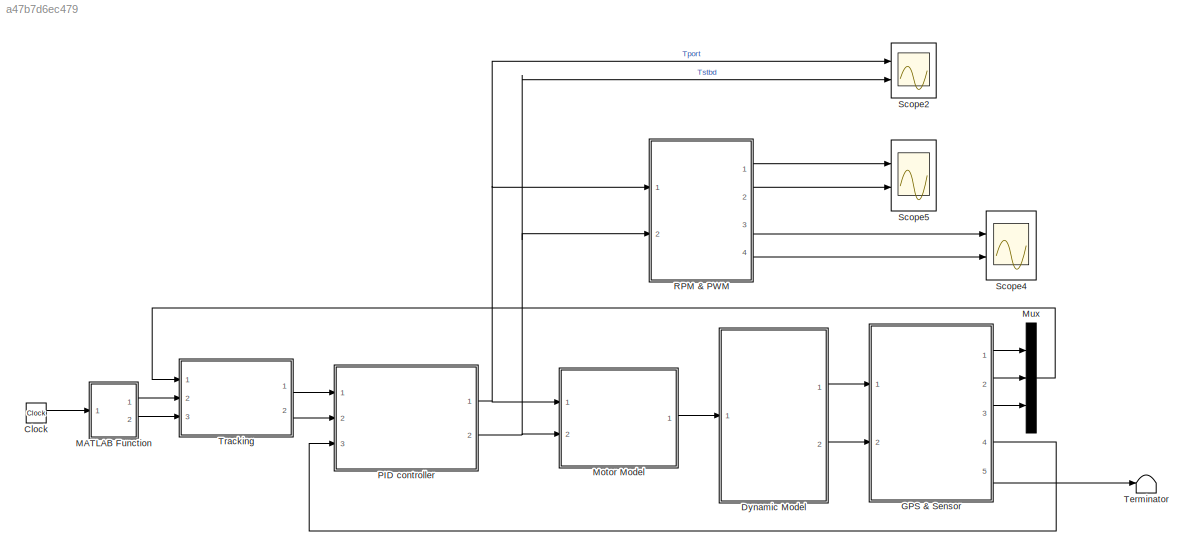
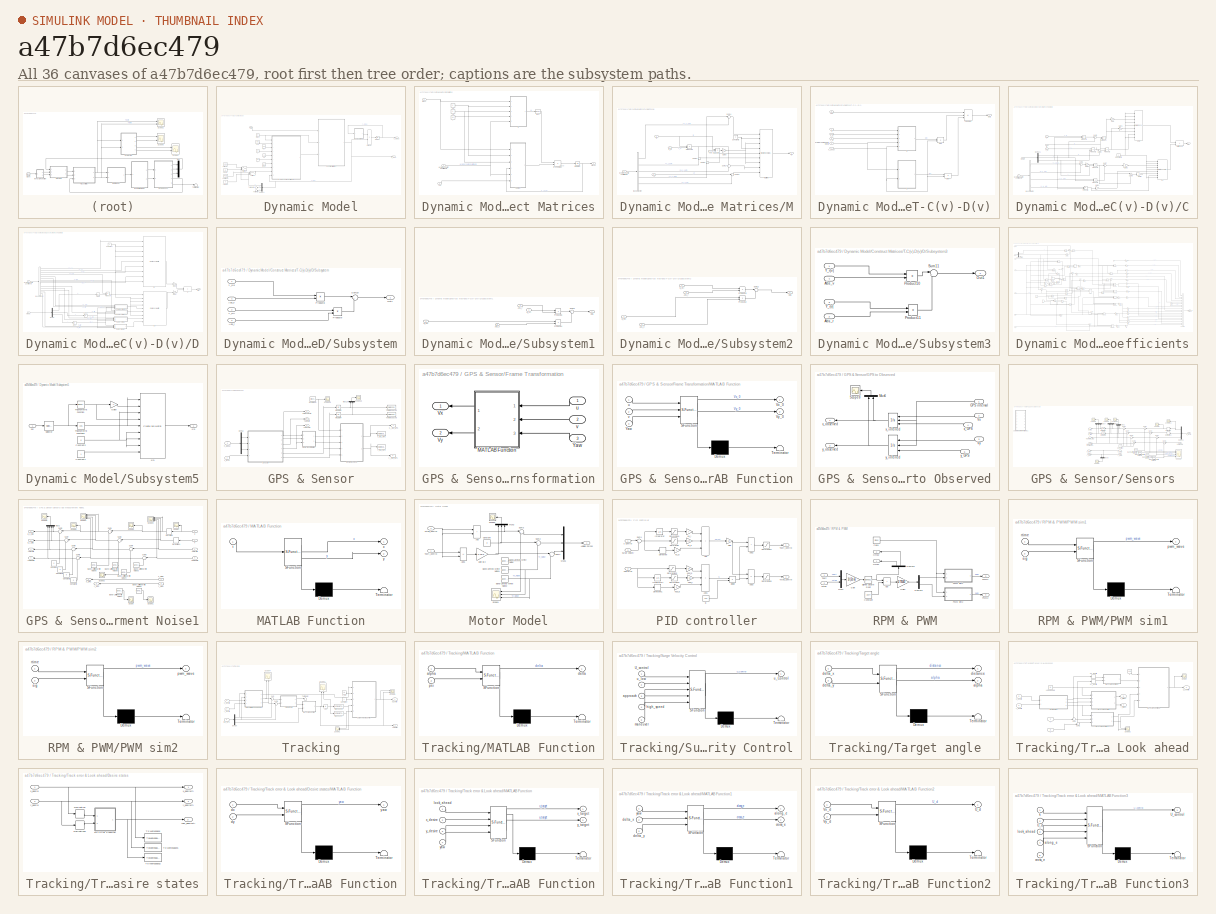
[diagram: thumbnail index - all 36 canvases of the model, root first then tree order]
MODEL slx_a47b7d6ec479
KIND model
CONFIG AbsTol = auto
CONFIG EnableMultiTasking = off
CONFIG FixedStep = 0.01
CONFIG MaxStep = auto
CONFIG MinStep = auto
CONFIG RelTol = 1e-3
CONFIG SampleTimeConstraint = Unconstrained
CONFIG SolverName = ode4
CONFIG StartTime = 0.0
CONFIG StopTime = 400
BLOCK [Clock] Clock
BLOCK [SubSystem] Dynamic Model
  Ports = [1, 2]
  RequestExecContextInheritance = off
BLOCK [Constant] Dynamic Model/Bhull 
  Value = 0.27
BLOCK [Constant] Dynamic Model/Cd
  Value = 1.1
BLOCK [SubSystem] Dynamic Model/Construct Matrices
  Ports = [3, 1]
  RequestExecContextInheritance = off
BLOCK [Inport] Dynamic Model/Construct Matrices/Hydrodynamic Coefficients
  Port = 3
BLOCK [Constant] Dynamic Model/Construct Matrices/I
  Value = 4.1
BLOCK [Integrator] Dynamic Model/Construct Matrices/Integrator
  Ports = [1, 1]
BLOCK [SubSystem] Dynamic Model/Construct Matrices/M
  Ports = [5, 1]
  RequestExecContextInheritance = off
BLOCK [BusSelector] Dynamic Model/Construct Matrices/M/Bus Selector
  OutputSignals = X_u_dot,Y_r_dot,N_v_dot,Y_v_dot,N_r_dot
  Ports = [1, 5]
BLOCK [Constant] Dynamic Model/Construct Matrices/M/Constant3
  Value = 0
BLOCK [Gain] Dynamic Model/Construct Matrices/M/Gain8
  Gain = -1
BLOCK [Inport] Dynamic Model/Construct Matrices/M/Hydrodynamic coefficients
  Port = 5
BLOCK [Inport] Dynamic Model/Construct Matrices/M/I_z
  Port = 4
BLOCK [Outport] Dynamic Model/Construct Matrices/M/M
  VectorParamsAs1DForOutWhenUnconnected = off
BLOCK [Reference] Dynamic Model/Construct Matrices/M/Matrix M  REF=sharedutil/Create 3x3 Matrix
  Ports = [9, 1]
  SourceBlock = sharedutil/Create 3x3 Matrix
  SourceProductBaseCode = AE,PW,MT,UV,VE,VP
  SourceType = Create 3x3 Matrix
BLOCK [Product] Dynamic Model/Construct Matrices/M/Product17
  Ports = [2, 1]
BLOCK [Product] Dynamic Model/Construct Matrices/M/Product18
  Ports = [2, 1]
BLOCK [Sum] Dynamic Model/Construct Matrices/M/Sum14
  Inputs = |+-
  Ports = [2, 1]
BLOCK [Sum] Dynamic Model/Construct Matrices/M/Sum15
  Inputs = +-
  Ports = [2, 1]
BLOCK [Sum] Dynamic Model/Construct Matrices/M/Sum16
  Inputs = +-
  Ports = [2, 1]
BLOCK [Sum] Dynamic Model/Construct Matrices/M/Sum17
  Inputs = +-
  Ports = [2, 1]
BLOCK [Sum] Dynamic Model/Construct Matrices/M/Sum18
  Inputs = |+-
  Ports = [2, 1]
BLOCK [Inport] Dynamic Model/Construct Matrices/M/X_G
  Port = 2
BLOCK [Inport] Dynamic Model/Construct Matrices/M/Y_G
  Port = 3
BLOCK [Inport] Dynamic Model/Construct Matrices/M/m
BLOCK [Reference] Dynamic Model/Construct Matrices/M^-1  REF=aerolibutil/Invert 
3x3 Matrix
  Ports = [1, 1]
  SourceBlock = aerolibutil/Invert \n3x3 Matrix
  SourceProductBaseCode = AE
  SourceType = Invert 3x3 Matrix
BLOCK [Product] Dynamic Model/Construct Matrices/M^-1(T-C(v)-D(v))
  Multiplication = Matrix(*)
  Ports = [2, 1]
BLOCK [Inport] Dynamic Model/Construct Matrices/Mass 
  Port = 2
BLOCK [SubSystem] Dynamic Model/Construct Matrices/T-C(v)-D(v)
  Ports = [6, 1]
  RequestExecContextInheritance = off
BLOCK [SubSystem] Dynamic Model/Construct Matrices/T-C(v)-D(v)/C
  Ports = [5, 1]
  RequestExecContextInheritance = off
BLOCK [Product] Dynamic Model/Construct Matrices/T-C(v)-D(v)/C(v)v
  Multiplication = Matrix(*)
  Ports = [2, 1]
BLOCK [Reference] Dynamic Model/Construct Matrices/T-C(v)-D(v)/C/ CRB  REF=sharedutil/Create 3x3 Matrix
  Ports = [9, 1]
  SourceBlock = sharedutil/Create 3x3 Matrix
  SourceProductBaseCode = AE,PW,MT,UV,VE,VP
  SourceType = Create 3x3 Matrix
BLOCK [BusSelector] Dynamic Model/Construct Matrices/T-C(v)-D(v)/C/Bus Selector
  OutputSignals = Y_r_dot,N_v_dot,Y_v_dot,X_u_dot
  Ports = [1, 4]
BLOCK [Outport] Dynamic Model/Construct Matrices/T-C(v)-D(v)/C/C(v)
  VectorParamsAs1DForOutWhenUnconnected = off
BLOCK [Reference] Dynamic Model/Construct Matrices/T-C(v)-D(v)/C/CA  REF=sharedutil/Create 3x3 Matrix
  Ports = [9, 1]
  SourceBlock = sharedutil/Create 3x3 Matrix
  SourceProductBaseCode = AE,PW,MT,UV,VE,VP
  SourceType = Create 3x3 Matrix
BLOCK [Constant] Dynamic Model/Construct Matrices/T-C(v)-D(v)/C/Constant3
  Value = 0
BLOCK [Demux] Dynamic Model/Construct Matrices/T-C(v)-D(v)/C/Demux1
  Outputs = 3
  Ports = [1, 3]
BLOCK [Gain] Dynamic Model/Construct Matrices/T-C(v)-D(v)/C/Gain
  Gain = -1
BLOCK [Gain] Dynamic Model/Construct Matrices/T-C(v)-D(v)/C/Gain1
  Gain = -1
BLOCK [Gain] Dynamic Model/Construct Matrices/T-C(v)-D(v)/C/Gain2
  Gain = 1/2
BLOCK [Gain] Dynamic Model/Construct Matrices/T-C(v)-D(v)/C/Gain3
  Gain = 2
BLOCK [Gain] Dynamic Model/Construct Matrices/T-C(v)-D(v)/C/Gain5
  Gain = 2
BLOCK [Gain] Dynamic Model/Construct Matrices/T-C(v)-D(v)/C/Gain6
  Gain = -1
BLOCK [Inport] Dynamic Model/Construct Matrices/T-C(v)-D(v)/C/Hydrodynamic coefficients
  Port = 4
BLOCK [Sum] Dynamic Model/Construct Matrices/T-C(v)-D(v)/C/Matrix Sum
  IconShape = rectangular
  Ports = [2, 1]
BLOCK [Product] Dynamic Model/Construct Matrices/T-C(v)-D(v)/C/Product
  Ports = [2, 1]
BLOCK [Product] Dynamic Model/Construct Matrices/T-C(v)-D(v)/C/Product1
  Ports = [2, 1]
BLOCK [Product] Dynamic Model/Construct Matrices/T-C(v)-D(v)/C/Product2
  Ports = [2, 1]
BLOCK [Product] Dynamic Model/Construct Matrices/T-C(v)-D(v)/C/Product3
  Ports = [2, 1]
BLOCK [Product] Dynamic Model/Construct Matrices/T-C(v)-D(v)/C/Product4
  Ports = [2, 1]
BLOCK [Product] Dynamic Model/Construct Matrices/T-C(v)-D(v)/C/Product5
  Ports = [2, 1]
BLOCK [Product] Dynamic Model/Construct Matrices/T-C(v)-D(v)/C/Product6
  Ports = [2, 1]
BLOCK [Sum] Dynamic Model/Construct Matrices/T-C(v)-D(v)/C/Sum3
  Inputs = |++
  Ports = [2, 1]
BLOCK [Sum] Dynamic Model/Construct Matrices/T-C(v)-D(v)/C/Sum4
  Inputs = +-
  Ports = [2, 1]
BLOCK [Sum] Dynamic Model/Construct Matrices/T-C(v)-D(v)/C/Sum6
  Inputs = |++
  Ports = [2, 1]
BLOCK [Sum] Dynamic Model/Construct Matrices/T-C(v)-D(v)/C/Sum7
  Inputs = |++
  Ports = [2, 1]
BLOCK [Sum] Dynamic Model/Construct Matrices/T-C(v)-D(v)/C/Sum8
  Inputs = |--
  Ports = [2, 1]
BLOCK [Inport] Dynamic Model/Construct Matrices/T-C(v)-D(v)/C/V local
  Port = 5
BLOCK [Inport] Dynamic Model/Construct Matrices/T-C(v)-D(v)/C/X_G
  Port = 2
BLOCK [Inport] Dynamic Model/Construct Matrices/T-C(v)-D(v)/C/Y_G
  Port = 3
BLOCK [Inport] Dynamic Model/Construct Matrices/T-C(v)-D(v)/C/m
BLOCK [SubSystem] Dynamic Model/Construct Matrices/T-C(v)-D(v)/D
  Ports = [2, 1]
  RequestExecContextInheritance = off
BLOCK [Product] Dynamic Model/Construct Matrices/T-C(v)-D(v)/D(v)v
  Multiplication = Matrix(*)
  Ports = [2, 1]
BLOCK [Abs] Dynamic Model/Construct Matrices/T-C(v)-D(v)/D/Abs r
  SaturateOnIntegerOverflow = off
BLOCK [Abs] Dynamic Model/Construct Matrices/T-C(v)-D(v)/D/Abs u
  SaturateOnIntegerOverflow = off
BLOCK [Abs] Dynamic Model/Construct Matrices/T-C(v)-D(v)/D/Abs v
  SaturateOnIntegerOverflow = off
BLOCK [BusSelector] Dynamic Model/Construct Matrices/T-C(v)-D(v)/D/Bus Selector
  OutputSignals = X_u,Y_v,Y_r,X_u|u|,Y_v|v|,Y_v|r|,Y_r|v|,N_v,N_r,Y_r|r|,N_v|v|,N_v|r|,N_r|r|,N_r|v|
  Ports = [1, 14]
BLOCK [Constant] Dynamic Model/Construct Matrices/T-C(v)-D(v)/D/Constant
  Value = 0
BLOCK [Sum] Dynamic Model/Construct Matrices/T-C(v)-D(v)/D/D
  IconShape = rectangular
  Ports = [2, 1]
BLOCK [Outport] Dynamic Model/Construct Matrices/T-C(v)-D(v)/D/D(v)
  VectorParamsAs1DForOutWhenUnconnected = off
BLOCK [Demux] Dynamic Model/Construct Matrices/T-C(v)-D(v)/D/Demux
  Outputs = 3
  Ports = [1, 3]
BLOCK [Reference] Dynamic Model/Construct Matrices/T-C(v)-D(v)/D/Dl  REF=sharedutil/Create 3x3 Matrix
  Ports = [9, 1]
  SourceBlock = sharedutil/Create 3x3 Matrix
  SourceProductBaseCode = AE,PW,MT,UV,VE,VP
  SourceType = Create 3x3 Matrix
BLOCK [Reference] Dynamic Model/Construct Matrices/T-C(v)-D(v)/D/Dn  REF=sharedutil/Create 3x3 Matrix
  Ports = [9, 1]
  SourceBlock = sharedutil/Create 3x3 Matrix
  SourceProductBaseCode = AE,PW,MT,UV,VE,VP
  SourceType = Create 3x3 Matrix
BLOCK [Gain] Dynamic Model/Construct Matrices/T-C(v)-D(v)/D/Gain4
  Gain = -1
BLOCK [Gain] Dynamic Model/Construct Matrices/T-C(v)-D(v)/D/Gain7
  Gain = -1
BLOCK [Inport] Dynamic Model/Construct Matrices/T-C(v)-D(v)/D/Hydrodynamic Coefficients
BLOCK [Product] Dynamic Model/Construct Matrices/T-C(v)-D(v)/D/Product7
  Ports = [2, 1]
BLOCK [SubSystem] Dynamic Model/Construct Matrices/T-C(v)-D(v)/D/Subsystem
  Ports = [4, 1]
  RequestExecContextInheritance = off
BLOCK [Inport] Dynamic Model/Construct Matrices/T-C(v)-D(v)/D/Subsystem/Abs_r
  Port = 3
BLOCK [Inport] Dynamic Model/Construct Matrices/T-C(v)-D(v)/D/Subsystem/Abs_v 
  Port = 4
BLOCK [Outport] Dynamic Model/Construct Matrices/T-C(v)-D(v)/D/Subsystem/Out1
  VectorParamsAs1DForOutWhenUnconnected = off
BLOCK [Product] Dynamic Model/Construct Matrices/T-C(v)-D(v)/D/Subsystem/Product8
  Ports = [2, 1]
BLOCK [Product] Dynamic Model/Construct Matrices/T-C(v)-D(v)/D/Subsystem/Product9
  Ports = [2, 1]
BLOCK [Sum] Dynamic Model/Construct Matrices/T-C(v)-D(v)/D/Subsystem/Sum10
  Inputs = |++
  Ports = [2, 1]
BLOCK [Inport] Dynamic Model/Construct Matrices/T-C(v)-D(v)/D/Subsystem/Y_v|r|
  Port = 2
BLOCK [Inport] Dynamic Model/Construct Matrices/T-C(v)-D(v)/D/Subsystem/Y_v|v| 
BLOCK [SubSystem] Dynamic Model/Construct Matrices/T-C(v)-D(v)/D/Subsystem1
  Ports = [4, 1]
  RequestExecContextInheritance = off
BLOCK [Inport] Dynamic Model/Construct Matrices/T-C(v)-D(v)/D/Subsystem1/Abs_r
BLOCK [Inport] Dynamic Model/Construct Matrices/T-C(v)-D(v)/D/Subsystem1/Abs_v
  Port = 4
BLOCK [Inport] Dynamic Model/Construct Matrices/T-C(v)-D(v)/D/Subsystem1/N_r|r|
  Port = 2
BLOCK [Inport] Dynamic Model/Construct Matrices/T-C(v)-D(v)/D/Subsystem1/N_r|v|
  Port = 3
BLOCK [Outport] Dynamic Model/Construct Matrices/T-C(v)-D(v)/D/Subsystem1/Out1
  VectorParamsAs1DForOutWhenUnconnected = off
BLOCK [Product] Dynamic Model/Construct Matrices/T-C(v)-D(v)/D/Subsystem1/Product14
  Ports = [2, 1]
BLOCK [Product] Dynamic Model/Construct Matrices/T-C(v)-D(v)/D/Subsystem1/Product15
  Ports = [2, 1]
BLOCK [Sum] Dynamic Model/Construct Matrices/T-C(v)-D(v)/D/Subsystem1/Sum13
  Inputs = |++
  Ports = [2, 1]
BLOCK [SubSystem] Dynamic Model/Construct Matrices/T-C(v)-D(v)/D/Subsystem2
  Ports = [4, 1]
  RequestExecContextInheritance = off
BLOCK [Inport] Dynamic Model/Construct Matrices/T-C(v)-D(v)/D/Subsystem2/Abs_r
  Port = 2
BLOCK [Inport] Dynamic Model/Construct Matrices/T-C(v)-D(v)/D/Subsystem2/Abs_v
  Port = 4
BLOCK [Inport] Dynamic Model/Construct Matrices/T-C(v)-D(v)/D/Subsystem2/N_v|r|
BLOCK [Inport] Dynamic Model/Construct Matrices/T-C(v)-D(v)/D/Subsystem2/N_v|v|
  Port = 3
BLOCK [Outport] Dynamic Model/Construct Matrices/T-C(v)-D(v)/D/Subsystem2/Out1
  VectorParamsAs1DForOutWhenUnconnected = off
BLOCK [Product] Dynamic Model/Construct Matrices/T-C(v)-D(v)/D/Subsystem2/Product12
  Ports = [2, 1]
BLOCK [Product] Dynamic Model/Construct Matrices/T-C(v)-D(v)/D/Subsystem2/Product13
  Ports = [2, 1]
BLOCK [Sum] Dynamic Model/Construct Matrices/T-C(v)-D(v)/D/Subsystem2/Sum12
  Inputs = |++
  Ports = [2, 1]
BLOCK [SubSystem] Dynamic Model/Construct Matrices/T-C(v)-D(v)/D/Subsystem3
  Ports = [4, 1]
  RequestExecContextInheritance = off
BLOCK [Inport] Dynamic Model/Construct Matrices/T-C(v)-D(v)/D/Subsystem3/Abs_r 
  Port = 2
BLOCK [Inport] Dynamic Model/Construct Matrices/T-C(v)-D(v)/D/Subsystem3/Abs_v
  Port = 4
BLOCK [Outport] Dynamic Model/Construct Matrices/T-C(v)-D(v)/D/Subsystem3/Out1
  VectorParamsAs1DForOutWhenUnconnected = off
BLOCK [Product] Dynamic Model/Construct Matrices/T-C(v)-D(v)/D/Subsystem3/Product10
  Ports = [2, 1]
BLOCK [Product] Dynamic Model/Construct Matrices/T-C(v)-D(v)/D/Subsystem3/Product11
  Ports = [2, 1]
BLOCK [Sum] Dynamic Model/Construct Matrices/T-C(v)-D(v)/D/Subsystem3/Sum11
  Inputs = |++
  Ports = [2, 1]
BLOCK [Inport] Dynamic Model/Construct Matrices/T-C(v)-D(v)/D/Subsystem3/Y_r|r|
  Port = 3
BLOCK [Inport] Dynamic Model/Construct Matrices/T-C(v)-D(v)/D/Subsystem3/Y_r|v|
BLOCK [Inport] Dynamic Model/Construct Matrices/T-C(v)-D(v)/D/V - local
  Port = 2
BLOCK [Inport] Dynamic Model/Construct Matrices/T-C(v)-D(v)/HydrodynamicCoefficients
  Port = 5
BLOCK [Outport] Dynamic Model/Construct Matrices/T-C(v)-D(v)/Out1
  VectorParamsAs1DForOutWhenUnconnected = off
BLOCK [Sum] Dynamic Model/Construct Matrices/T-C(v)-D(v)/T - C(v)v - D(v)v
  IconShape = rectangular
  Inputs = +--
  Ports = [3, 1]
BLOCK [Inport] Dynamic Model/Construct Matrices/T-C(v)-D(v)/Tau
  Port = 6
BLOCK [Inport] Dynamic Model/Construct Matrices/T-C(v)-D(v)/V_Local
  Port = 4
BLOCK [Inport] Dynamic Model/Construct Matrices/T-C(v)-D(v)/X_G
  Port = 2
BLOCK [Inport] Dynamic Model/Construct Matrices/T-C(v)-D(v)/Y_G
  Port = 3
BLOCK [Inport] Dynamic Model/Construct Matrices/T-C(v)-D(v)/m
BLOCK [Inport] Dynamic Model/Construct Matrices/Tau
BLOCK [Outport] Dynamic Model/Construct Matrices/V- local
  VectorParamsAs1DForOutWhenUnconnected = off
BLOCK [Constant] Dynamic Model/Construct Matrices/XG
  NameLocation = top
  Value = 0
BLOCK [Constant] Dynamic Model/Construct Matrices/YG
  Value = 0
BLOCK [Demux] Dynamic Model/Demux1
  Outputs = 3
  Ports = [1, 3]
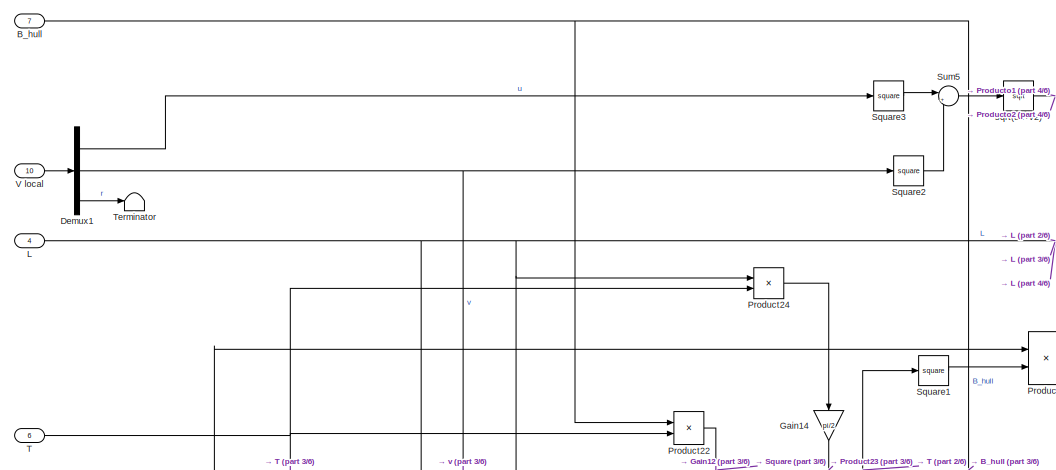
[diagram: Dynamic Model/Hydrodynamic Coefficients - part 1/6, top left region]
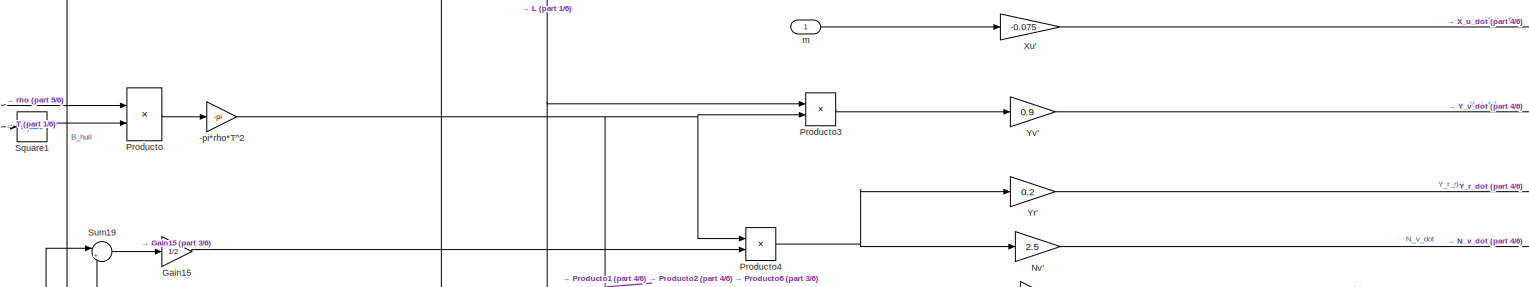
[diagram: Dynamic Model/Hydrodynamic Coefficients - part 2/6, top center region]
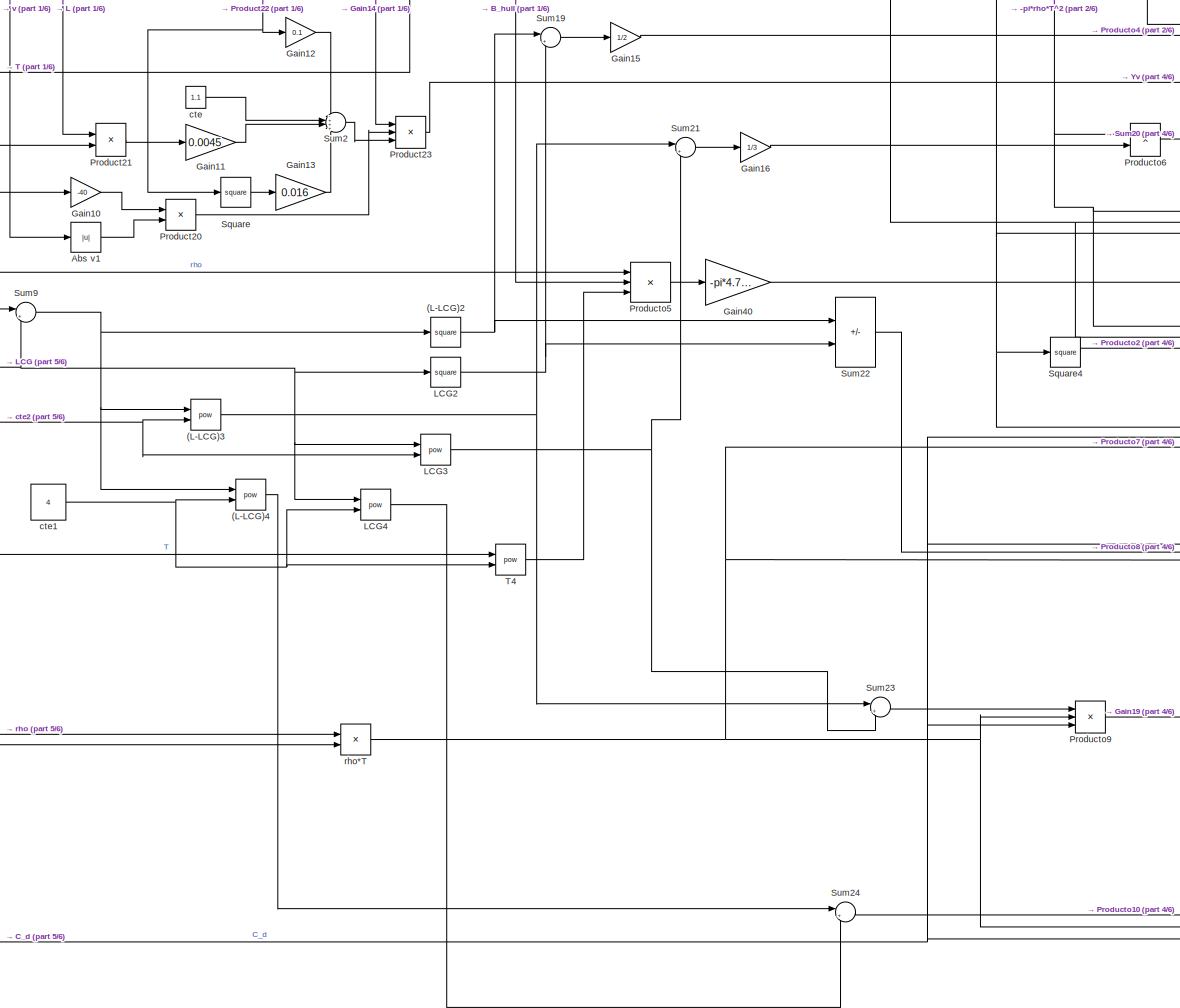
[diagram: Dynamic Model/Hydrodynamic Coefficients - part 3/6, central region]
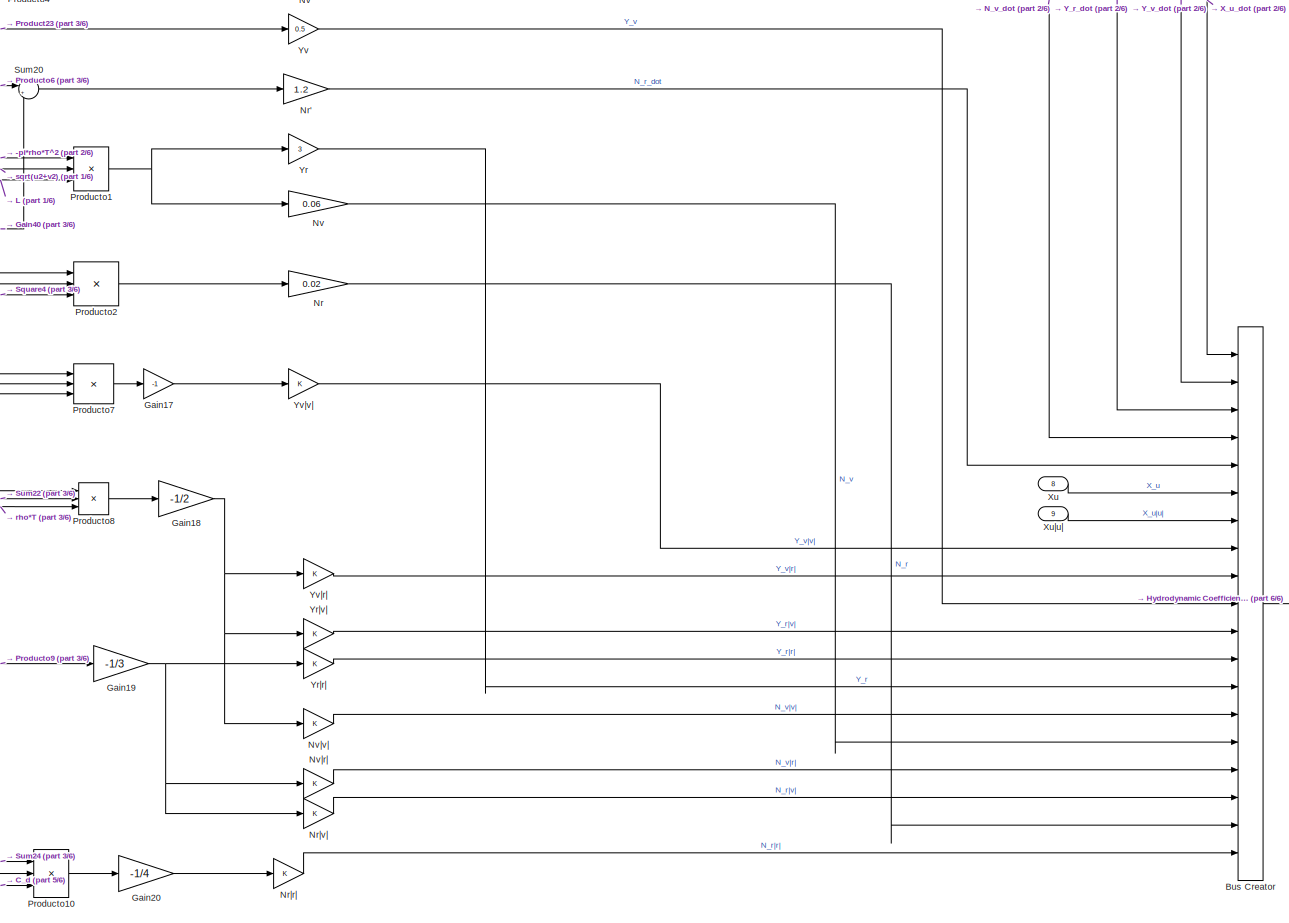
[diagram: Dynamic Model/Hydrodynamic Coefficients - part 4/6, middle right region]
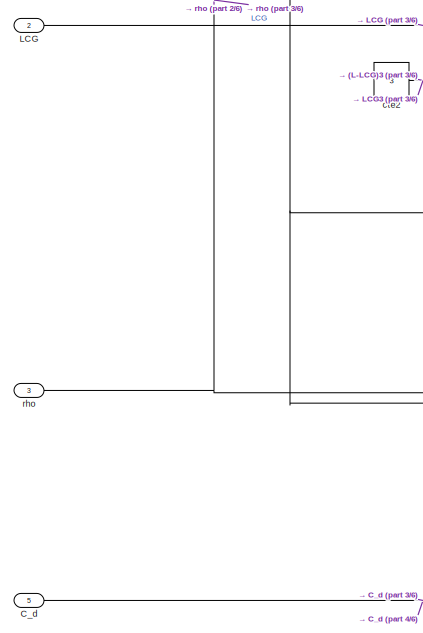
[diagram: Dynamic Model/Hydrodynamic Coefficients - part 5/6, bottom left region]
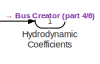
[diagram: Dynamic Model/Hydrodynamic Coefficients - part 6/6, bottom right region]
BLOCK [SubSystem] Dynamic Model/Hydrodynamic Coefficients
  Ports = [10, 1]
  RequestExecContextInheritance = off
BLOCK [Math] Dynamic Model/Hydrodynamic Coefficients/(L-LCG)2
  Operator = square
  Ports = [1, 1]
  SignedPower = on
BLOCK [Math] Dynamic Model/Hydrodynamic Coefficients/(L-LCG)3
  Operator = pow
  Ports = [2, 1]
  SignedPower = on
BLOCK [Math] Dynamic Model/Hydrodynamic Coefficients/(L-LCG)4
  Operator = pow
  Ports = [2, 1]
  SignedPower = on
BLOCK [Gain] Dynamic Model/Hydrodynamic Coefficients/-pi*rho*T^2
  Gain = -pi
BLOCK [Abs] Dynamic Model/Hydrodynamic Coefficients/Abs v1
  SaturateOnIntegerOverflow = off
BLOCK [Inport] Dynamic Model/Hydrodynamic Coefficients/B_hull
  Port = 7
BLOCK [BusCreator] Dynamic Model/Hydrodynamic Coefficients/Bus Creator
  DisplayOption = bar
  InheritFromInputs = on
  Inputs = 19
  Ports = [19, 1]
BLOCK [Inport] Dynamic Model/Hydrodynamic Coefficients/C_d
  Port = 5
BLOCK [Demux] Dynamic Model/Hydrodynamic Coefficients/Demux1
  Outputs = 3
  Ports = [1, 3]
BLOCK [Gain] Dynamic Model/Hydrodynamic Coefficients/Gain10
  Gain = -40
BLOCK [Gain] Dynamic Model/Hydrodynamic Coefficients/Gain11
  Gain = 0.0045
BLOCK [Gain] Dynamic Model/Hydrodynamic Coefficients/Gain12
  Gain = 0.1
BLOCK [Gain] Dynamic Model/Hydrodynamic Coefficients/Gain13
  Gain = 0.016
BLOCK [Gain] Dynamic Model/Hydrodynamic Coefficients/Gain14
  Gain = pi/2
  NameLocation = left
BLOCK [Gain] Dynamic Model/Hydrodynamic Coefficients/Gain15
  Gain = 1/2
BLOCK [Gain] Dynamic Model/Hydrodynamic Coefficients/Gain16
  Gain = 1/3
BLOCK [Gain] Dynamic Model/Hydrodynamic Coefficients/Gain17
  Gain = -1
BLOCK [Gain] Dynamic Model/Hydrodynamic Coefficients/Gain18
  Gain = -1/2
BLOCK [Gain] Dynamic Model/Hydrodynamic Coefficients/Gain19
  Gain = -1/3
BLOCK [Gain] Dynamic Model/Hydrodynamic Coefficients/Gain20
  Gain = -1/4
BLOCK [Gain] Dynamic Model/Hydrodynamic Coefficients/Gain40
  Gain = -pi*4.75/4
BLOCK [Outport] Dynamic Model/Hydrodynamic Coefficients/Hydrodynamic Coefficients 
  VectorParamsAs1DForOutWhenUnconnected = off
BLOCK [Inport] Dynamic Model/Hydrodynamic Coefficients/L
  Port = 4
BLOCK [Inport] Dynamic Model/Hydrodynamic Coefficients/LCG
  Port = 2
BLOCK [Math] Dynamic Model/Hydrodynamic Coefficients/LCG2
  Operator = square
  Ports = [1, 1]
  SignedPower = on
BLOCK [Math] Dynamic Model/Hydrodynamic Coefficients/LCG3
  Operator = pow
  Ports = [2, 1]
  SignedPower = on
BLOCK [Math] Dynamic Model/Hydrodynamic Coefficients/LCG4
  Operator = pow
  Ports = [2, 1]
  SignedPower = on
BLOCK [Gain] Dynamic Model/Hydrodynamic Coefficients/Nr
  Gain = 0.02
BLOCK [Gain] Dynamic Model/Hydrodynamic Coefficients/Nr'
  Gain = 1.2
BLOCK [Gain] Dynamic Model/Hydrodynamic Coefficients/Nr|r|
BLOCK [Gain] Dynamic Model/Hydrodynamic Coefficients/Nr|v|
BLOCK [Gain] Dynamic Model/Hydrodynamic Coefficients/Nv
  Gain = 0.06
BLOCK [Gain] Dynamic Model/Hydrodynamic Coefficients/Nv'
  Gain = 2.5
BLOCK [Gain] Dynamic Model/Hydrodynamic Coefficients/Nv|r|
  NameLocation = top
BLOCK [Gain] Dynamic Model/Hydrodynamic Coefficients/Nv|v|
BLOCK [Product] Dynamic Model/Hydrodynamic Coefficients/Product20
  Ports = [2, 1]
BLOCK [Product] Dynamic Model/Hydrodynamic Coefficients/Product21
  Inputs = */
  Ports = [2, 1]
BLOCK [Product] Dynamic Model/Hydrodynamic Coefficients/Product22
  Inputs = */
  Ports = [2, 1]
BLOCK [Product] Dynamic Model/Hydrodynamic Coefficients/Product23
  Inputs = 3
  Ports = [3, 1]
BLOCK [Product] Dynamic Model/Hydrodynamic Coefficients/Product24
  Ports = [2, 1]
BLOCK [Product] Dynamic Model/Hydrodynamic Coefficients/Producto
  Ports = [2, 1]
BLOCK [Product] Dynamic Model/Hydrodynamic Coefficients/Producto1
  Inputs = 3
  Ports = [3, 1]
BLOCK [Product] Dynamic Model/Hydrodynamic Coefficients/Producto10
  Inputs = 3
  Ports = [3, 1]
BLOCK [Product] Dynamic Model/Hydrodynamic Coefficients/Producto2
  Inputs = 3
  Ports = [3, 1]
BLOCK [Product] Dynamic Model/Hydrodynamic Coefficients/Producto3
  Ports = [2, 1]
BLOCK [Product] Dynamic Model/Hydrodynamic Coefficients/Producto4
  Ports = [2, 1]
BLOCK [Product] Dynamic Model/Hydrodynamic Coefficients/Producto5
  Inputs = 3
  Ports = [3, 1]
BLOCK [Product] Dynamic Model/Hydrodynamic Coefficients/Producto6
  Ports = [2, 1]
BLOCK [Product] Dynamic Model/Hydrodynamic Coefficients/Producto7
  Inputs = 3
  Ports = [3, 1]
BLOCK [Product] Dynamic Model/Hydrodynamic Coefficients/Producto8
  Inputs = 3
  Ports = [3, 1]
BLOCK [Product] Dynamic Model/Hydrodynamic Coefficients/Producto9
  Inputs = 3
  Ports = [3, 1]
BLOCK [Math] Dynamic Model/Hydrodynamic Coefficients/Square
  Operator = square
  Ports = [1, 1]
  SignedPower = on
BLOCK [Math] Dynamic Model/Hydrodynamic Coefficients/Square1
  Operator = square
  Ports = [1, 1]
  SignedPower = on
BLOCK [Math] Dynamic Model/Hydrodynamic Coefficients/Square2
  Operator = square
  Ports = [1, 1]
  SignedPower = on
BLOCK [Math] Dynamic Model/Hydrodynamic Coefficients/Square3
  Operator = square
  Ports = [1, 1]
  SignedPower = on
BLOCK [Math] Dynamic Model/Hydrodynamic Coefficients/Square4
  Operator = square
  Ports = [1, 1]
  SignedPower = on
BLOCK [Sum] Dynamic Model/Hydrodynamic Coefficients/Sum19
  Inputs = |++
  Ports = [2, 1]
BLOCK [Sum] Dynamic Model/Hydrodynamic Coefficients/Sum2
  Inputs = -+++
  Ports = [4, 1]
BLOCK [Sum] Dynamic Model/Hydrodynamic Coefficients/Sum20
  Inputs = |++
  Ports = [2, 1]
BLOCK [Sum] Dynamic Model/Hydrodynamic Coefficients/Sum21
  Inputs = |++
  Ports = [2, 1]
BLOCK [Sum] Dynamic Model/Hydrodynamic Coefficients/Sum22
  IconShape = rectangular
  Inputs = |+-
  Ports = [2, 1]
BLOCK [Sum] Dynamic Model/Hydrodynamic Coefficients/Sum23
  Inputs = |++
  Ports = [2, 1]
BLOCK [Sum] Dynamic Model/Hydrodynamic Coefficients/Sum24
  Inputs = |++
  Ports = [2, 1]
BLOCK [Sum] Dynamic Model/Hydrodynamic Coefficients/Sum5
  Inputs = |++
  Ports = [2, 1]
BLOCK [Sum] Dynamic Model/Hydrodynamic Coefficients/Sum9
  Inputs = |+-
  Ports = [2, 1]
BLOCK [Inport] Dynamic Model/Hydrodynamic Coefficients/T
  Port = 6
BLOCK [Math] Dynamic Model/Hydrodynamic Coefficients/T4
  Operator = pow
  Ports = [2, 1]
  SignedPower = on
BLOCK [Terminator] Dynamic Model/Hydrodynamic Coefficients/Terminator
BLOCK [Inport] Dynamic Model/Hydrodynamic Coefficients/V local
  Port = 10
BLOCK [Inport] Dynamic Model/Hydrodynamic Coefficients/Xu
  Port = 8
BLOCK [Gain] Dynamic Model/Hydrodynamic Coefficients/Xu'
  Gain = -0.075
BLOCK [Inport] Dynamic Model/Hydrodynamic Coefficients/Xu|u|
  Port = 9
BLOCK [Gain] Dynamic Model/Hydrodynamic Coefficients/Yr
  Gain = 3
BLOCK [Gain] Dynamic Model/Hydrodynamic Coefficients/Yr'
  Gain = 0.2
BLOCK [Gain] Dynamic Model/Hydrodynamic Coefficients/Yr|r|
BLOCK [Gain] Dynamic Model/Hydrodynamic Coefficients/Yr|v|
  NameLocation = top
BLOCK [Gain] Dynamic Model/Hydrodynamic Coefficients/Yv
  Gain = 0.5
BLOCK [Gain] Dynamic Model/Hydrodynamic Coefficients/Yv'
  Gain = 0.9
BLOCK [Gain] Dynamic Model/Hydrodynamic Coefficients/Yv|r|
  NameLocation = top
BLOCK [Gain] Dynamic Model/Hydrodynamic Coefficients/Yv|v|
BLOCK [Constant] Dynamic Model/Hydrodynamic Coefficients/cte
  Value = 1.1
BLOCK [Constant] Dynamic Model/Hydrodynamic Coefficients/cte1
  Value = 4
BLOCK [Constant] Dynamic Model/Hydrodynamic Coefficients/cte2
  Value = 3
BLOCK [Inport] Dynamic Model/Hydrodynamic Coefficients/m
BLOCK [Inport] Dynamic Model/Hydrodynamic Coefficients/rho
  Port = 3
BLOCK [Product] Dynamic Model/Hydrodynamic Coefficients/rho*T
  Ports = [2, 1]
BLOCK [Sqrt] Dynamic Model/Hydrodynamic Coefficients/sqrt(u2+v2)
BLOCK [Constant] Dynamic Model/L
  Value = 1.01
BLOCK [Constant] Dynamic Model/LCG
  Value = 0.45
BLOCK [SubSystem] Dynamic Model/Subsystem5
  Ports = [1, 1]
  RequestExecContextInheritance = off
BLOCK [Reference] Dynamic Model/Subsystem5/ J(n)  REF=sharedutil/Create 3x3 Matrix
  Ports = [9, 1]
  SourceBlock = sharedutil/Create 3x3 Matrix
  SourceProductBaseCode = AE,PW,MT,UV,VE,VP
  SourceType = Create 3x3 Matrix
BLOCK [Constant] Dynamic Model/Subsystem5/Constant1
BLOCK [Constant] Dynamic Model/Subsystem5/Constant2
  Value = 0
BLOCK [Gain] Dynamic Model/Subsystem5/Gain9
  Gain = -1
BLOCK [Outport] Dynamic Model/Subsystem5/J(n)
  VectorParamsAs1DForOutWhenUnconnected = off
BLOCK [Selector] Dynamic Model/Subsystem5/Selector
  IndexOptions = Index vector (dialog)
  Indices = 3
  InputPortWidth = 3
  OutputSizes = 1
  Ports = [1, 1]
BLOCK [Trigonometry] Dynamic Model/Subsystem5/Trigonometric Function
  Ports = [1, 1]
BLOCK [Trigonometry] Dynamic Model/Subsystem5/Trigonometric Function1
  Operator = cos
  Ports = [1, 1]
BLOCK [Inport] Dynamic Model/Subsystem5/psi
BLOCK [Switch] Dynamic Model/Switch
  Criteria = u2 > Threshold
  InputSameDT = off
  SaturateOnIntegerOverflow = off
  Threshold = 1.2
BLOCK [Switch] Dynamic Model/Switch1
  Criteria = u2 > Threshold
  InputSameDT = off
  SaturateOnIntegerOverflow = off
  Threshold = 1.2
BLOCK [Constant] Dynamic Model/T
  Value = 0.09
BLOCK [Inport] Dynamic Model/Tau
BLOCK [Terminator] Dynamic Model/Terminator
BLOCK [Terminator] Dynamic Model/Terminator1
BLOCK [Outport] Dynamic Model/V_local
  Port = 2
  VectorParamsAs1DForOutWhenUnconnected = off
BLOCK [Constant] Dynamic Model/Xu linear
  Value = 64.55
BLOCK [Constant] Dynamic Model/Xu poly
  Value = 25
BLOCK [Constant] Dynamic Model/Xu|u| linear
  Value = -70.92
BLOCK [Constant] Dynamic Model/Xu|u| poly
  Value = 0
BLOCK [Constant] Dynamic Model/mass
  Value = 30
BLOCK [Integrator] Dynamic Model/n - global
  InitialCondition = [0 0 0]
  Ports = [1, 1]
BLOCK [Product] Dynamic Model/n' - global
  Multiplication = Matrix(*)
  Ports = [2, 1]
BLOCK [Outport] Dynamic Model/n_global
  VectorParamsAs1DForOutWhenUnconnected = off
BLOCK [Constant] Dynamic Model/rho
  Value = 1000
BLOCK [SubSystem] GPS & Sensor
  Ports = [2, 5]
  RequestExecContextInheritance = off
BLOCK [Demux] GPS & Sensor/Demux
  Outputs = 3
  Ports = [1, 3]
BLOCK [SubSystem] GPS & Sensor/Frame Transformation
  Ports = [3, 2]
  RequestExecContextInheritance = off
BLOCK [SubSystem] GPS & Sensor/Frame Transformation/MATLAB Function
  ErrorFcn = Stateflow.Translate.translate
  PermitHierarchicalResolution = ExplicitOnly
  Ports = [3, 2]
  RequestExecContextInheritance = off
  SFBlockType = MATLAB Function
  TreatAsAtomicUnit = on
BLOCK [Demux] GPS & Sensor/Frame Transformation/MATLAB Function/ Demux 
  Outputs = 1
  Ports = [1, 1]
BLOCK [S-Function] GPS & Sensor/Frame Transformation/MATLAB Function/ SFunction 
  EnableBusSupport = on
  FunctionName = sf_sfun
  PortCounts = [3 3]
  Ports = [3, 3]
  SFcnIsStateOwnerBlock = off
  SFunctionDeploymentMode = off
  Tag = Stateflow S-Function 6
BLOCK [Terminator] GPS & Sensor/Frame Transformation/MATLAB Function/ Terminator 
BLOCK [Outport] GPS & Sensor/Frame Transformation/MATLAB Function/Vx_0
  VectorParamsAs1DForOutWhenUnconnected = off
BLOCK [Outport] GPS & Sensor/Frame Transformation/MATLAB Function/Vy_0
  Port = 2
  VectorParamsAs1DForOutWhenUnconnected = off
BLOCK [Inport] GPS & Sensor/Frame Transformation/MATLAB Function/Yaw
  Port = 3
BLOCK [Inport] GPS & Sensor/Frame Transformation/MATLAB Function/u
BLOCK [Inport] GPS & Sensor/Frame Transformation/MATLAB Function/v
  Port = 2
BLOCK [Outport] GPS & Sensor/Frame Transformation/Vx
  VectorParamsAs1DForOutWhenUnconnected = off
BLOCK [Outport] GPS & Sensor/Frame Transformation/Vy
  Port = 2
  VectorParamsAs1DForOutWhenUnconnected = off
BLOCK [Inport] GPS & Sensor/Frame Transformation/Yaw
  Port = 3
BLOCK [Inport] GPS & Sensor/Frame Transformation/u
BLOCK [Inport] GPS & Sensor/Frame Transformation/v
  Port = 2
BLOCK [DiscretePulseGenerator] GPS & Sensor/GPS interval
  NameLocation = top
  Period = 20
  PhaseDelay = 0.2
  Ports = [0, 1]
  PulseType = Time based
  PulseWidth = 5
BLOCK [SubSystem] GPS & Sensor/GPS to Observed
  NameLocation = top
  Ports = [5, 2]
  RequestExecContextInheritance = off
BLOCK [Inport] GPS & Sensor/GPS to Observed/GPS interval
BLOCK [Mux] GPS & Sensor/GPS to Observed/Mux6
  DisplayOption = bar
  Inputs = 2
  NameLocation = right
  Ports = [2, 1]
BLOCK [Scope] GPS & Sensor/GPS to Observed/Scope8
  Floating = off
  NumInputPorts = 1
  Ports = [1]
  ScopeSpecificationString = Simulink.scopes.TimeScopeBlockCfg('CurrentConfiguration', extmgr.ConfigurationSet(extmgr.Configuration('Core','General UI',true),extmgr.Configuration('Core','Source UI',true),extmgr.Configuration('Sources','WiredSimulink',true,'DataLoggingVariableName','ScopeData8'),extmgr.Configuration('Visuals','Time Domain',true,'SerializedDisplays',{struct('MinYLimReal','-2.25786','MaxYLimReal','2.27544','YLab...<+1578ch>
BLOCK [Inport] GPS & Sensor/GPS to Observed/Vx
  Port = 2
BLOCK [Inport] GPS & Sensor/GPS to Observed/Vy
  Port = 3
BLOCK [Inport] GPS & Sensor/GPS to Observed/x_GPS
  Port = 4
BLOCK [Integrator] GPS & Sensor/GPS to Observed/x_inferred
  ExternalReset = rising
  InitialConditionSource = external
  NameLocation = top
  Ports = [3, 1]
BLOCK [Outport] GPS & Sensor/GPS to Observed/x_observed
  VectorParamsAs1DForOutWhenUnconnected = off
BLOCK [Inport] GPS & Sensor/GPS to Observed/y_GPS
  Port = 5
BLOCK [Integrator] GPS & Sensor/GPS to Observed/y_inferred
  ExternalReset = rising
  InitialConditionSource = external
  Ports = [3, 1]
BLOCK [Outport] GPS & Sensor/GPS to Observed/y_observed
  Port = 2
  VectorParamsAs1DForOutWhenUnconnected = off
BLOCK [Integrator] GPS & Sensor/Integrator4
  NameLocation = top
  Ports = [1, 1]
BLOCK [Integrator] GPS & Sensor/Integrator5
  NameLocation = top
  Ports = [1, 1]
BLOCK [Mux] GPS & Sensor/Mux10
  DisplayOption = bar
  Inputs = 2
  NameLocation = left
  Ports = [2, 1]
BLOCK [Scope] GPS & Sensor/Scope10
  Floating = off
  NumInputPorts = 1
  Ports = [1]
  ScopeSpecificationString = Simulink.scopes.TimeScopeBlockCfg('CurrentConfiguration', extmgr.ConfigurationSet(extmgr.Configuration('Core','General UI',true,'FigureColor',[1 1 1]),extmgr.Configuration('Core','Source UI',true),extmgr.Configuration('Sources','WiredSimulink',true,'DataLoggingVariableName','ScopeData16'),extmgr.Configuration('Visuals','Time Domain',true,'SerializedDisplays',{struct('MinYLimReal','-0.125','MaxYLim...<+1702ch>
BLOCK [Scope] GPS & Sensor/Scope13
  Floating = off
  NameLocation = top
  NumInputPorts = 1
  Ports = [1]
  ScopeSpecificationString = Simulink.scopes.TimeScopeBlockCfg('CurrentConfiguration', extmgr.ConfigurationSet(extmgr.Configuration('Core','General UI',true),extmgr.Configuration('Core','Source UI',true),extmgr.Configuration('Sources','WiredSimulink',true,'DataLoggingVariableName','ScopeData20'),extmgr.Configuration('Visuals','Time Domain',true,'SerializedDisplays',{struct('MinYLimReal','-2.651','MaxYLimReal','1.88157','YLabe...<+1573ch>
BLOCK [SubSystem] GPS & Sensor/Sensors
  NameLocation = top
  Ports = [4, 6]
  RequestExecContextInheritance = off
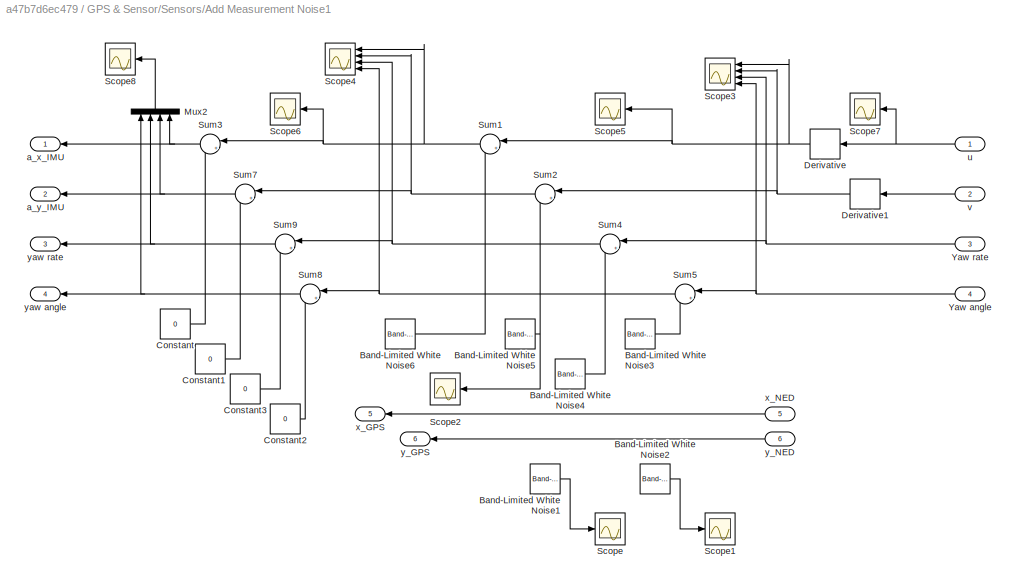
BLOCK [SubSystem] GPS & Sensor/Sensors/Add Measurement Noise1
  Commented = on
  Ports = [6, 6]
  RequestExecContextInheritance = off
BLOCK [Reference] GPS & Sensor/Sensors/Add Measurement Noise1/Band-Limited White Noise1  REF=simulink/Sources/Band-Limited
White Noise
  NameLocation = top
  Ports = [0, 1]
  SourceBlock = simulink/Sources/Band-Limited\nWhite Noise
  SourceProductBaseCode = SL
  SourceType = Band-Limited White Noise.
BLOCK [Reference] GPS & Sensor/Sensors/Add Measurement Noise1/Band-Limited White Noise2  REF=simulink/Sources/Band-Limited
White Noise
  NameLocation = top
  Ports = [0, 1]
  SourceBlock = simulink/Sources/Band-Limited\nWhite Noise
  SourceProductBaseCode = SL
  SourceType = Band-Limited White Noise.
BLOCK [Reference] GPS & Sensor/Sensors/Add Measurement Noise1/Band-Limited White Noise3  REF=simulink/Sources/Band-Limited
White Noise
  Ports = [0, 1]
  SourceBlock = simulink/Sources/Band-Limited\nWhite Noise
  SourceProductBaseCode = SL
  SourceType = Band-Limited White Noise.
BLOCK [Reference] GPS & Sensor/Sensors/Add Measurement Noise1/Band-Limited White Noise4  REF=simulink/Sources/Band-Limited
White Noise
  NameLocation = top
  Ports = [0, 1]
  SourceBlock = simulink/Sources/Band-Limited\nWhite Noise
  SourceProductBaseCode = SL
  SourceType = Band-Limited White Noise.
BLOCK [Reference] GPS & Sensor/Sensors/Add Measurement Noise1/Band-Limited White Noise5  REF=simulink/Sources/Band-Limited
White Noise
  Ports = [0, 1]
  SourceBlock = simulink/Sources/Band-Limited\nWhite Noise
  SourceProductBaseCode = SL
  SourceType = Band-Limited White Noise.
BLOCK [Reference] GPS & Sensor/Sensors/Add Measurement Noise1/Band-Limited White Noise6  REF=simulink/Sources/Band-Limited
White Noise
  Ports = [0, 1]
  SourceBlock = simulink/Sources/Band-Limited\nWhite Noise
  SourceProductBaseCode = SL
  SourceType = Band-Limited White Noise.
BLOCK [Constant] GPS & Sensor/Sensors/Add Measurement Noise1/Constant
  Value = 0
BLOCK [Constant] GPS & Sensor/Sensors/Add Measurement Noise1/Constant1
  Value = 0
BLOCK [Constant] GPS & Sensor/Sensors/Add Measurement Noise1/Constant2
  Value = 0
BLOCK [Constant] GPS & Sensor/Sensors/Add Measurement Noise1/Constant3
  Value = 0
BLOCK [Derivative] GPS & Sensor/Sensors/Add Measurement Noise1/Derivative
BLOCK [Derivative] GPS & Sensor/Sensors/Add Measurement Noise1/Derivative1
BLOCK [Mux] GPS & Sensor/Sensors/Add Measurement Noise1/Mux2
  DisplayOption = bar
  NameLocation = left
  Ports = [4, 1]
BLOCK [Scope] GPS & Sensor/Sensors/Add Measurement Noise1/Scope
  Floating = off
  NumInputPorts = 1
  Ports = [1]
  ScopeSpecificationString = Simulink.scopes.TimeScopeBlockCfg('CurrentConfiguration', extmgr.ConfigurationSet(extmgr.Configuration('Core','General UI',true),extmgr.Configuration('Core','Source UI',true),extmgr.Configuration('Sources','WiredSimulink',true,'DataLoggingVariableName','ScopeData6'),extmgr.Configuration('Visuals','Time Domain',true,'SerializedDisplays',{struct('MinYLimReal','-3.2165','MaxYLimReal','3.456','YLabelR...<+1374ch>
BLOCK [Scope] GPS & Sensor/Sensors/Add Measurement Noise1/Scope1
  Floating = off
  NumInputPorts = 1
  Ports = [1]
  ScopeSpecificationString = Simulink.scopes.TimeScopeBlockCfg('CurrentConfiguration', extmgr.ConfigurationSet(extmgr.Configuration('Core','General UI',true),extmgr.Configuration('Core','Source UI',true),extmgr.Configuration('Sources','WiredSimulink',true,'DataLoggingVariableName','ScopeData7'),extmgr.Configuration('Visuals','Time Domain',true,'SerializedDisplays',{struct('MinYLimReal','-2.17945','MaxYLimReal','2.67137','YLab...<+1384ch>
BLOCK [Scope] GPS & Sensor/Sensors/Add Measurement Noise1/Scope2
  Floating = off
  NumInputPorts = 1
  Ports = [1]
  ScopeSpecificationString = Simulink.scopes.TimeScopeBlockCfg('CurrentConfiguration', extmgr.ConfigurationSet(extmgr.Configuration('Core','General UI',true),extmgr.Configuration('Core','Source UI',true),extmgr.Configuration('Sources','WiredSimulink',true,'DataLoggingVariableName','ScopeData9'),extmgr.Configuration('Visuals','Time Domain',true,'SerializedDisplays',{struct('MinYLimReal','-0.00328','MaxYLimReal','0.00346','YLab...<+1411ch>
BLOCK [Scope] GPS & Sensor/Sensors/Add Measurement Noise1/Scope3
  Floating = off
  NumInputPorts = 4
  Ports = [4]
  ScopeSpecificationString = Simulink.scopes.TimeScopeBlockCfg('CurrentConfiguration', extmgr.ConfigurationSet(extmgr.Configuration('Core','General UI',true),extmgr.Configuration('Core','Source UI',true),extmgr.Configuration('Sources','WiredSimulink',true,'DataLoggingVariableName','ScopeData10'),extmgr.Configuration('Visuals','Time Domain',true,'SerializedDisplays',{struct('MinYLimReal','-0.91016','MaxYLimReal','1.81288','YLa...<+3388ch>
BLOCK [Scope] GPS & Sensor/Sensors/Add Measurement Noise1/Scope4
  Floating = off
  NumInputPorts = 4
  Ports = [4]
  ScopeSpecificationString = Simulink.scopes.TimeScopeBlockCfg('CurrentConfiguration', extmgr.ConfigurationSet(extmgr.Configuration('Core','General UI',true),extmgr.Configuration('Core','Source UI',true),extmgr.Configuration('Sources','WiredSimulink',true,'DataLoggingVariableName','ScopeData11'),extmgr.Configuration('Visuals','Time Domain',true,'SerializedDisplays',{struct('MinYLimReal','-0.26786','MaxYLimReal','0.67204','YLa...<+3367ch>
BLOCK [Scope] GPS & Sensor/Sensors/Add Measurement Noise1/Scope5
  Floating = off
  NumInputPorts = 1
  Ports = [1]
  ScopeSpecificationString = Simulink.scopes.TimeScopeBlockCfg('CurrentConfiguration', extmgr.ConfigurationSet(extmgr.Configuration('Core','General UI',true),extmgr.Configuration('Core','Source UI',true),extmgr.Configuration('Sources','WiredSimulink',true,'DataLoggingVariableName','ScopeData12'),extmgr.Configuration('Visuals','Time Domain',true,'SerializedDisplays',{struct('MinYLimReal','-2.89474','MaxYLimReal','1.48483','YLa...<+1468ch>
BLOCK [Scope] GPS & Sensor/Sensors/Add Measurement Noise1/Scope6
  Floating = off
  NumInputPorts = 1
  Ports = [1]
  ScopeSpecificationString = Simulink.scopes.TimeScopeBlockCfg('CurrentConfiguration', extmgr.ConfigurationSet(extmgr.Configuration('Core','General UI',true),extmgr.Configuration('Core','Source UI',true),extmgr.Configuration('Sources','WiredSimulink',true,'DataLoggingVariableName','ScopeData13'),extmgr.Configuration('Visuals','Time Domain',true,'SerializedDisplays',{struct('MinYLimReal','-1.64241','MaxYLimReal','1.13827','YLa...<+1437ch>
BLOCK [Scope] GPS & Sensor/Sensors/Add Measurement Noise1/Scope7
  Floating = off
  NumInputPorts = 1
  Ports = [1]
  ScopeSpecificationString = Simulink.scopes.TimeScopeBlockCfg('CurrentConfiguration', extmgr.ConfigurationSet(extmgr.Configuration('Core','General UI',true),extmgr.Configuration('Core','Source UI',true),extmgr.Configuration('Sources','WiredSimulink',true,'DataLoggingVariableName','ScopeData14'),extmgr.Configuration('Visuals','Time Domain',true,'SerializedDisplays',{struct('MinYLimReal','-0.11372','MaxYLimReal','1.02351','YLa...<+1388ch>
BLOCK [Scope] GPS & Sensor/Sensors/Add Measurement Noise1/Scope8
  Floating = off
  NumInputPorts = 1
  Ports = [1]
  ScopeSpecificationString = Simulink.scopes.TimeScopeBlockCfg('CurrentConfiguration', extmgr.ConfigurationSet(extmgr.Configuration('Core','General UI',true),extmgr.Configuration('Core','Source UI',true),extmgr.Configuration('Sources','WiredSimulink',true,'DataLoggingVariableName','ScopeData21'),extmgr.Configuration('Visuals','Time Domain',true,'SerializedDisplays',{struct('MinYLimReal','-7.39565','MaxYLimReal','2.53629','YLa...<+1412ch>
BLOCK [Sum] GPS & Sensor/Sensors/Add Measurement Noise1/Sum1
  Inputs = |++
  Ports = [2, 1]
BLOCK [Sum] GPS & Sensor/Sensors/Add Measurement Noise1/Sum2
  Inputs = |++
  Ports = [2, 1]
BLOCK [Sum] GPS & Sensor/Sensors/Add Measurement Noise1/Sum3
  Inputs = |++
  Ports = [2, 1]
BLOCK [Sum] GPS & Sensor/Sensors/Add Measurement Noise1/Sum4
  Inputs = |+-
  Ports = [2, 1]
BLOCK [Sum] GPS & Sensor/Sensors/Add Measurement Noise1/Sum5
  Inputs = |+-
  Ports = [2, 1]
BLOCK [Sum] GPS & Sensor/Sensors/Add Measurement Noise1/Sum7
  Inputs = |++
  Ports = [2, 1]
BLOCK [Sum] GPS & Sensor/Sensors/Add Measurement Noise1/Sum8
  Inputs = |++
  Ports = [2, 1]
BLOCK [Sum] GPS & Sensor/Sensors/Add Measurement Noise1/Sum9
  Inputs = |++
  Ports = [2, 1]
BLOCK [Inport] GPS & Sensor/Sensors/Add Measurement Noise1/Yaw angle
  Port = 4
BLOCK [Inport] GPS & Sensor/Sensors/Add Measurement Noise1/Yaw rate
  Port = 3
BLOCK [Outport] GPS & Sensor/Sensors/Add Measurement Noise1/a_x_IMU
  VectorParamsAs1DForOutWhenUnconnected = off
BLOCK [Outport] GPS & Sensor/Sensors/Add Measurement Noise1/a_y_IMU
  Port = 2
  VectorParamsAs1DForOutWhenUnconnected = off
BLOCK [Inport] GPS & Sensor/Sensors/Add Measurement Noise1/u
BLOCK [Inport] GPS & Sensor/Sensors/Add Measurement Noise1/v
  Port = 2
BLOCK [Outport] GPS & Sensor/Sensors/Add Measurement Noise1/x_GPS
  Port = 5
  VectorParamsAs1DForOutWhenUnconnected = off
BLOCK [Inport] GPS & Sensor/Sensors/Add Measurement Noise1/x_NED
  Port = 5
BLOCK [Outport] GPS & Sensor/Sensors/Add Measurement Noise1/y_GPS
  Port = 6
  VectorParamsAs1DForOutWhenUnconnected = off
BLOCK [Inport] GPS & Sensor/Sensors/Add Measurement Noise1/y_NED
  Port = 6
BLOCK [Outport] GPS & Sensor/Sensors/Add Measurement Noise1/yaw angle
  Port = 4
  VectorParamsAs1DForOutWhenUnconnected = off
BLOCK [Outport] GPS & Sensor/Sensors/Add Measurement Noise1/yaw rate
  Port = 3
  VectorParamsAs1DForOutWhenUnconnected = off
BLOCK [Reference] GPS & Sensor/Sensors/Band-Limited White Noise3  REF=simulink/Sources/Band-Limited
White Noise
  Ports = [0, 1]
  SourceBlock = simulink/Sources/Band-Limited\nWhite Noise
  SourceProductBaseCode = SL
  SourceType = Band-Limited White Noise.
BLOCK [Reference] GPS & Sensor/Sensors/Band-Limited White Noise4  REF=simulink/Sources/Band-Limited
White Noise
  NameLocation = top
  Ports = [0, 1]
  SourceBlock = simulink/Sources/Band-Limited\nWhite Noise
  SourceProductBaseCode = SL
  SourceType = Band-Limited White Noise.
BLOCK [Reference] GPS & Sensor/Sensors/Band-Limited White Noise5  REF=simulink/Sources/Band-Limited
White Noise
  Ports = [0, 1]
  SourceBlock = simulink/Sources/Band-Limited\nWhite Noise
  SourceProductBaseCode = SL
  SourceType = Band-Limited White Noise.
BLOCK [Reference] GPS & Sensor/Sensors/Band-Limited White Noise6  REF=simulink/Sources/Band-Limited
White Noise
  Ports = [0, 1]
  SourceBlock = simulink/Sources/Band-Limited\nWhite Noise
  SourceProductBaseCode = SL
  SourceType = Band-Limited White Noise.
BLOCK [Constant] GPS & Sensor/Sensors/Constant
  Value = 0
BLOCK [Demux] GPS & Sensor/Sensors/Demux1
  Outputs = 3
  Ports = [1, 3]
BLOCK [Derivative] GPS & Sensor/Sensors/Derivative
BLOCK [Derivative] GPS & Sensor/Sensors/Derivative1
BLOCK [Integrator] GPS & Sensor/Sensors/Integrator
  Ports = [1, 1]
BLOCK [Integrator] GPS & Sensor/Sensors/Integrator2
  Ports = [1, 1]
BLOCK [Mux] GPS & Sensor/Sensors/Mux2
  DisplayOption = bar
  NameLocation = left
  Ports = [4, 1]
BLOCK [Mux] GPS & Sensor/Sensors/Mux4
  DisplayOption = bar
  Inputs = 3
  NameLocation = right
  Ports = [3, 1]
BLOCK [Mux] GPS & Sensor/Sensors/Mux5
  DisplayOption = bar
  Inputs = 2
  NameLocation = right
  Ports = [2, 1]
BLOCK [Mux] GPS & Sensor/Sensors/Mux7
  DisplayOption = bar
  Inputs = 3
  NameLocation = right
  Ports = [3, 1]
BLOCK [Scope] GPS & Sensor/Sensors/Scope1
  Floating = off
  NumInputPorts = 4
  Ports = [4]
  ScopeSpecificationString = Simulink.scopes.TimeScopeBlockCfg('CurrentConfiguration', extmgr.ConfigurationSet(extmgr.Configuration('Core','General UI',true,'FigureColor',[1 1 1]),extmgr.Configuration('Core','Source UI',true),extmgr.Configuration('Sources','WiredSimulink',true,'DataLoggingVariableName','ScopeData3'),extmgr.Configuration('Visuals','Time Domain',true,'SerializedDisplays',{struct('MinYLimReal','-0.03216','MaxYLi...<+4065ch>
BLOCK [Scope] GPS & Sensor/Sensors/Scope10
  Floating = off
  NumInputPorts = 1
  Ports = [1]
  ScopeSpecificationString = Simulink.scopes.TimeScopeBlockCfg('CurrentConfiguration', extmgr.ConfigurationSet(extmgr.Configuration('Core','General UI',true),extmgr.Configuration('Core','Source UI',true),extmgr.Configuration('Sources','WiredSimulink',true,'DataLoggingVariableName','ScopeData4'),extmgr.Configuration('Visuals','Time Domain',true,'SerializedDisplays',{struct('MinYLimReal','-0.11372','MaxYLimReal','1.02351','YLab...<+1387ch>
BLOCK [Scope] GPS & Sensor/Sensors/Scope11
  Floating = off
  NumInputPorts = 1
  Ports = [1]
  ScopeSpecificationString = Simulink.scopes.TimeScopeBlockCfg('CurrentConfiguration', extmgr.ConfigurationSet(extmgr.Configuration('Core','General UI',true),extmgr.Configuration('Core','Source UI',true),extmgr.Configuration('Sources','WiredSimulink',true,'DataLoggingVariableName','ScopeData5'),extmgr.Configuration('Visuals','Time Domain',true,'SerializedDisplays',{struct('MinYLimReal','-7.39565','MaxYLimReal','2.53629','YLab...<+1411ch>
BLOCK [Scope] GPS & Sensor/Sensors/Scope5
  Floating = off
  NumInputPorts = 1
  Ports = [1]
  ScopeSpecificationString = Simulink.scopes.TimeScopeBlockCfg('CurrentConfiguration', extmgr.ConfigurationSet(extmgr.Configuration('Core','General UI',true),extmgr.Configuration('Core','Source UI',true),extmgr.Configuration('Sources','WiredSimulink',true,'DataLoggingVariableName','ScopeData9'),extmgr.Configuration('Visuals','Time Domain',true,'SerializedDisplays',{struct('MinYLimReal','-2.89474','MaxYLimReal','1.48483','YLab...<+1467ch>
BLOCK [Scope] GPS & Sensor/Sensors/Scope6
  Floating = off
  NameLocation = top
  NumInputPorts = 1
  Ports = [1]
  ScopeSpecificationString = Simulink.scopes.TimeScopeBlockCfg('CurrentConfiguration', extmgr.ConfigurationSet(extmgr.Configuration('Core','General UI',true),extmgr.Configuration('Core','Source UI',true),extmgr.Configuration('Sources','WiredSimulink',true,'DataLoggingVariableName','ScopeData2'),extmgr.Configuration('Visuals','Time Domain',true,'SerializedDisplays',{struct('MinYLimReal','-0.45704','MaxYLimReal','3.89893','YLab...<+1630ch>
BLOCK [Scope] GPS & Sensor/Sensors/Scope7
  Floating = off
  NumInputPorts = 1
  Ports = [1]
  ScopeSpecificationString = Simulink.scopes.TimeScopeBlockCfg('CurrentConfiguration', extmgr.ConfigurationSet(extmgr.Configuration('Core','General UI',true),extmgr.Configuration('Core','Source UI',true),extmgr.Configuration('Sources','WiredSimulink',true,'DataLoggingVariableName','ScopeData3'),extmgr.Configuration('Visuals','Time Domain',true,'SerializedDisplays',{struct('MinYLimReal','-16.59835','MaxYLimReal','109.64649','Y...<+1580ch>
BLOCK [Scope] GPS & Sensor/Sensors/Scope9
  Floating = off
  NameLocation = top
  NumInputPorts = 1
  Ports = [1]
  ScopeSpecificationString = Simulink.scopes.TimeScopeBlockCfg('CurrentConfiguration', extmgr.ConfigurationSet(extmgr.Configuration('Core','General UI',true),extmgr.Configuration('Core','Source UI',true),extmgr.Configuration('Sources','WiredSimulink',true,'DataLoggingVariableName','ScopeData15'),extmgr.Configuration('Visuals','Time Domain',true,'SerializedDisplays',{struct('MinYLimReal','-1.64241','MaxYLimReal','1.13827','YLa...<+1606ch>
BLOCK [Sum] GPS & Sensor/Sensors/Sum1
  Inputs = |++
  Ports = [2, 1]
BLOCK [Sum] GPS & Sensor/Sensors/Sum2
  Inputs = |++
  Ports = [2, 1]
BLOCK [Sum] GPS & Sensor/Sensors/Sum3
  Inputs = |++
  Ports = [2, 1]
BLOCK [Sum] GPS & Sensor/Sensors/Sum4
  Inputs = |+-
  Ports = [2, 1]
BLOCK [Sum] GPS & Sensor/Sensors/Sum5
  Inputs = |+-
  Ports = [2, 1]
BLOCK [Sum] GPS & Sensor/Sensors/Sum7
  Inputs = |++
  Ports = [2, 1]
BLOCK [Sum] GPS & Sensor/Sensors/Sum8
  Inputs = |++
  Ports = [2, 1]
BLOCK [Sum] GPS & Sensor/Sensors/Sum9
  Inputs = |++
  Ports = [2, 1]
BLOCK [Inport] GPS & Sensor/Sensors/V_local
  Port = 4
BLOCK [Inport] GPS & Sensor/Sensors/Yaw angle
  Port = 3
BLOCK [Outport] GPS & Sensor/Sensors/YawAngle_Compass
  Port = 4
  VectorParamsAs1DForOutWhenUnconnected = off
BLOCK [Outport] GPS & Sensor/Sensors/YawRate_IMU
  Port = 3
  VectorParamsAs1DForOutWhenUnconnected = off
BLOCK [Outport] GPS & Sensor/Sensors/u_IMU
  VectorParamsAs1DForOutWhenUnconnected = off
BLOCK [Outport] GPS & Sensor/Sensors/v_IMU
  Port = 2
  VectorParamsAs1DForOutWhenUnconnected = off
BLOCK [Outport] GPS & Sensor/Sensors/x_GPS
  Port = 5
  VectorParamsAs1DForOutWhenUnconnected = off
BLOCK [Inport] GPS & Sensor/Sensors/x_NED
BLOCK [Outport] GPS & Sensor/Sensors/y_GPS
  Port = 6
  VectorParamsAs1DForOutWhenUnconnected = off
BLOCK [Inport] GPS & Sensor/Sensors/y_NED
  Port = 2
BLOCK [Outport] GPS & Sensor/Surge Velocity
  Port = 4
  VectorParamsAs1DForOutWhenUnconnected = off
BLOCK [ToWorkspace] GPS & Sensor/To Workspace3
  FixptAsFi = on
  MaxDataPoints = inf
  NameLocation = top
  Ports = [1]
  SampleTime = -1
  VariableName = y_INS
BLOCK [ToWorkspace] GPS & Sensor/To Workspace5
  FixptAsFi = on
  MaxDataPoints = inf
  NameLocation = top
  Ports = [1]
  SampleTime = -1
  VariableName = x_INS
BLOCK [Inport] GPS & Sensor/V_local
  NameLocation = top
  Port = 2
BLOCK [Outport] GPS & Sensor/Yaw Angle
  Port = 3
  VectorParamsAs1DForOutWhenUnconnected = off
BLOCK [Outport] GPS & Sensor/Yaw Rate
  Port = 5
  VectorParamsAs1DForOutWhenUnconnected = off
BLOCK [Inport] GPS & Sensor/n_global
  NameLocation = top
BLOCK [ToWorkspace] GPS & Sensor/x_INS_GPS
  FixptAsFi = on
  MaxDataPoints = inf
  NameLocation = top
  Ports = [1]
  SampleTime = -1
  VariableName = x_INS_GPS
BLOCK [Outport] GPS & Sensor/x__INS_GPS
  NameLocation = top
  VectorParamsAs1DForOutWhenUnconnected = off
BLOCK [ToWorkspace] GPS & Sensor/y_INS_GPS
  FixptAsFi = on
  MaxDataPoints = inf
  NameLocation = top
  Ports = [1]
  SampleTime = -1
  VariableName = y_INS_GPS
BLOCK [Outport] GPS & Sensor/y__INS_GPS
  NameLocation = top
  Port = 2
  VectorParamsAs1DForOutWhenUnconnected = off
BLOCK [SubSystem] MATLAB Function
  ErrorFcn = Stateflow.Translate.translate
  PermitHierarchicalResolution = ExplicitOnly
  Ports = [1, 2]
  RequestExecContextInheritance = off
  SFBlockType = MATLAB Function
  TreatAsAtomicUnit = on
BLOCK [Demux] MATLAB Function/ Demux 
  Outputs = 1
  Ports = [1, 1]
BLOCK [S-Function] MATLAB Function/ SFunction 
  EnableBusSupport = on
  FunctionName = sf_sfun
  PortCounts = [1 3]
  Ports = [1, 3]
  SFcnIsStateOwnerBlock = off
  SFunctionDeploymentMode = off
  Tag = Stateflow S-Function 1
BLOCK [Terminator] MATLAB Function/ Terminator 
BLOCK [Inport] MATLAB Function/t
BLOCK [Outport] MATLAB Function/x
BLOCK [Outport] MATLAB Function/y
  Port = 2
BLOCK [SubSystem] Motor Model
  NameLocation = top
  Ports = [2, 1]
  RequestExecContextInheritance = off
BLOCK [Sum] Motor Model/Add
  IconShape = rectangular
  Ports = [2, 1]
BLOCK [Sum] Motor Model/Add1
  IconShape = rectangular
  Inputs = +-
  Ports = [2, 1]
BLOCK [Outport] Motor Model/Applied Forces
  NameLocation = top
  VectorParamsAs1DForOutWhenUnconnected = off
BLOCK [Reference] Motor Model/Band-Limited White Noise  REF=simulink/Sources/Band-Limited
White Noise
  Ports = [0, 1]
  SourceBlock = simulink/Sources/Band-Limited\nWhite Noise
  SourceProductBaseCode = SL
  SourceType = Band-Limited White Noise.
BLOCK [Reference] Motor Model/Band-Limited White Noise1  REF=simulink/Sources/Band-Limited
White Noise
  Ports = [0, 1]
  SourceBlock = simulink/Sources/Band-Limited\nWhite Noise
  SourceProductBaseCode = SL
  SourceType = Band-Limited White Noise.
BLOCK [Reference] Motor Model/Band-Limited White Noise2  REF=simulink/Sources/Band-Limited
White Noise
  Ports = [0, 1]
  SourceBlock = simulink/Sources/Band-Limited\nWhite Noise
  SourceProductBaseCode = SL
  SourceType = Band-Limited White Noise.
BLOCK [Constant] Motor Model/Constant
  Value = 0
BLOCK [Mux] Motor Model/Mux3
  DisplayOption = bar
  Inputs = 3
  NameLocation = right
  Ports = [3, 1]
BLOCK [Mux] Motor Model/Mux5
  DisplayOption = bar
  Inputs = 3
  NameLocation = top
  Ports = [3, 1]
BLOCK [Scope] Motor Model/Scope1
  Floating = off
  NameLocation = top
  NumInputPorts = 3
  Ports = [3]
  ScopeSpecificationString = Simulink.scopes.TimeScopeBlockCfg('CurrentConfiguration', extmgr.ConfigurationSet(extmgr.Configuration('Core','General UI',true,'FigureColor',[1 1 1]),extmgr.Configuration('Core','Source UI',true),extmgr.Configuration('Sources','WiredSimulink',true,'DataLoggingVariableName','ScopeData1'),extmgr.Configuration('Visuals','Time Domain',true,'SerializedDisplays',{struct('MinYLimReal','-2.27441','MaxYLi...<+3279ch>
BLOCK [Scope] Motor Model/Scope3
  Floating = off
  NameLocation = top
  NumInputPorts = 1
  Ports = [1]
  ScopeSpecificationString = Simulink.scopes.TimeScopeBlockCfg('CurrentConfiguration', extmgr.ConfigurationSet(extmgr.Configuration('Core','General UI',true),extmgr.Configuration('Core','Source UI',true),extmgr.Configuration('Sources','WiredSimulink',true,'DataLoggingVariableName','ScopeData2'),extmgr.Configuration('Visuals','Time Domain',true,'SerializedDisplays',{struct('MinYLimReal','-47.95','MaxYLimReal','227.55','YLabelR...<+1595ch>
BLOCK [Sum] Motor Model/Sum1
  Inputs = |++
  NameLocation = top
  Ports = [2, 1]
BLOCK [Sum] Motor Model/Sum2
  Inputs = |++
  NameLocation = top
  Ports = [2, 1]
BLOCK [Sum] Motor Model/Sum3
  Inputs = |++
  NameLocation = top
  Ports = [2, 1]
BLOCK [Inport] Motor Model/Tport_Control
  NameLocation = top
BLOCK [Inport] Motor Model/Tstbd_Control
  NameLocation = top
  Port = 2
BLOCK [Gain] Motor Model/gain B//2
  Gain = 0.41/2
BLOCK [Mux] Mux
  DisplayOption = bar
  Inputs = 3
  Ports = [3, 1]
BLOCK [SubSystem] PID controller
  NameLocation = top
  Ports = [3, 2]
  RequestExecContextInheritance = off
BLOCK [Sum] PID controller/Add
  IconShape = rectangular
  Inputs = +++
  Ports = [3, 1]
BLOCK [Sum] PID controller/Add1
  IconShape = rectangular
  Inputs = +++
  Ports = [3, 1]
BLOCK [Sum] PID controller/Add2
  IconShape = rectangular
  Ports = [2, 1]
BLOCK [Sum] PID controller/Add3
  IconShape = rectangular
  Inputs = +-
  Ports = [2, 1]
BLOCK [Constant] PID controller/B
  Value = 0.41
BLOCK [Derivative] PID controller/Derivative
BLOCK [Derivative] PID controller/Derivative1
BLOCK [Product] PID controller/Divide
  Inputs = */
  Ports = [2, 1]
BLOCK [Gain] PID controller/Gain
  Gain = 1/2
BLOCK [Integrator] PID controller/Integrator
  Ports = [1, 1]
BLOCK [Integrator] PID controller/Integrator1
  Ports = [1, 1]
BLOCK [Gain] PID controller/Kpsi_d
  Gain = 0
BLOCK [Gain] PID controller/Kpsi_i
  Gain = 0.8
BLOCK [Gain] PID controller/Kpsi_p
  Gain = 25
BLOCK [Gain] PID controller/Ku_d
  Gain = 0
BLOCK [Gain] PID controller/Ku_i
  Gain = 7
BLOCK [Gain] PID controller/Ku_p
  Gain = 120
BLOCK [Saturate] PID controller/Saturation
  LowerLimit = 0
  UpperLimit = 3
BLOCK [Saturate] PID controller/Saturation1
  LowerLimit = -10
  UpperLimit = 10
BLOCK [Saturate] PID controller/Saturation2
  UpperLimit = 0.8
BLOCK [Saturate] PID controller/Saturation3
  LowerLimit = -10
  UpperLimit = 10
BLOCK [Saturate] PID controller/Saturation4
  LowerLimit = 0
  UpperLimit = 25
BLOCK [Saturate] PID controller/Saturation5
  LowerLimit = 0
  UpperLimit = 25
BLOCK [Sum] PID controller/Sum1
  Inputs = |+-
  Ports = [2, 1]
BLOCK [Inport] PID controller/Surge velocity
  Port = 3
BLOCK [Outport] PID controller/Tport_Control
  VectorParamsAs1DForOutWhenUnconnected = off
BLOCK [Outport] PID controller/Tstbd_Control
  Port = 2
  VectorParamsAs1DForOutWhenUnconnected = off
BLOCK [Inport] PID controller/Yaw error
  Port = 2
BLOCK [Inport] PID controller/u Control
BLOCK [SubSystem] RPM & PWM
  Ports = [2, 4]
  RequestExecContextInheritance = off
BLOCK [Sum] RPM & PWM/Add
  IconShape = rectangular
  Ports = [2, 1]
BLOCK [Clock] RPM & PWM/Clock
BLOCK [Constant] RPM & PWM/Constant
  Value = 3977
BLOCK [Demux] RPM & PWM/Demux1
  Outputs = 2
  Ports = [1, 2]
BLOCK [Demux] RPM & PWM/Demux2
  NameLocation = right
  Outputs = 2
  Ports = [1, 2]
BLOCK [Gain] RPM & PWM/Gain
  Gain = 1/(2e-6)
BLOCK [Gain] RPM & PWM/Gain1
  Gain = 1/79540
BLOCK [Mux] RPM & PWM/Mux1
  DisplayOption = bar
  Inputs = 2
  Ports = [2, 1]
BLOCK [Outport] RPM & PWM/Omg1
  NameLocation = top
BLOCK [Outport] RPM & PWM/Omg2
  NameLocation = top
  Port = 2
BLOCK [SubSystem] RPM & PWM/PWM sim1
  ErrorFcn = Stateflow.Translate.translate
  PermitHierarchicalResolution = ExplicitOnly
  Ports = [2, 1]
  RequestExecContextInheritance = off
  SFBlockType = MATLAB Function
  TreatAsAtomicUnit = on
BLOCK [Demux] RPM & PWM/PWM sim1/ Demux 
  Outputs = 1
  Ports = [1, 1]
BLOCK [S-Function] RPM & PWM/PWM sim1/ SFunction 
  EnableBusSupport = on
  FunctionName = sf_sfun
  PortCounts = [2 2]
  Ports = [2, 2]
  SFcnIsStateOwnerBlock = off
  SFunctionDeploymentMode = off
  Tag = Stateflow S-Function 15
BLOCK [Terminator] RPM & PWM/PWM sim1/ Terminator 
BLOCK [Outport] RPM & PWM/PWM sim1/pwm_wave
BLOCK [Inport] RPM & PWM/PWM sim1/rtime
BLOCK [Inport] RPM & PWM/PWM sim1/sig
  Port = 2
BLOCK [SubSystem] RPM & PWM/PWM sim2
  ErrorFcn = Stateflow.Translate.translate
  PermitHierarchicalResolution = ExplicitOnly
  Ports = [2, 1]
  RequestExecContextInheritance = off
  SFBlockType = MATLAB Function
  TreatAsAtomicUnit = on
BLOCK [Demux] RPM & PWM/PWM sim2/ Demux 
  Outputs = 1
  Ports = [1, 1]
BLOCK [S-Function] RPM & PWM/PWM sim2/ SFunction 
  EnableBusSupport = on
  FunctionName = sf_sfun
  PortCounts = [2 2]
  Ports = [2, 2]
  SFcnIsStateOwnerBlock = off
  SFunctionDeploymentMode = off
  Tag = Stateflow S-Function 2
BLOCK [Terminator] RPM & PWM/PWM sim2/ Terminator 
BLOCK [Outport] RPM & PWM/PWM sim2/pwm_wave
BLOCK [Inport] RPM & PWM/PWM sim2/rtime
BLOCK [Inport] RPM & PWM/PWM sim2/sig
  Port = 2
BLOCK [Outport] RPM & PWM/PWM1
  Port = 3
BLOCK [Outport] RPM & PWM/PWM2
  Port = 4
BLOCK [Sqrt] RPM & PWM/Signed Square Root
  Operator = signedSqrt
BLOCK [Inport] RPM & PWM/Tport
BLOCK [Inport] RPM & PWM/Tstbd
  Port = 2
BLOCK [Scope] Scope2
  Floating = off
  NumInputPorts = 2
  Ports = [2]
  ScopeSpecificationString = Simulink.scopes.TimeScopeBlockCfg('CurrentConfiguration', extmgr.ConfigurationSet(extmgr.Configuration('Core','General UI',true,'FigureColor',[1 1 1]),extmgr.Configuration('Core','Source UI',true),extmgr.Configuration('Sources','WiredSimulink',true,'DataLoggingVariableName','ScopeData1'),extmgr.Configuration('Visuals','Time Domain',true,'SerializedDisplays',{struct('MinYLimReal','-3.125','MaxYLimR...<+2540ch>
BLOCK [Scope] Scope4
  Floating = off
  NumInputPorts = 2
  Ports = [2]
  ScopeSpecificationString = Simulink.scopes.TimeScopeBlockCfg('CurrentConfiguration', extmgr.ConfigurationSet(extmgr.Configuration('Core','General UI',true,'FigureColor',[1 1 1]),extmgr.Configuration('Core','Source UI',true),extmgr.Configuration('Sources','WiredSimulink',true,'DataLoggingVariableName','ScopeData1'),extmgr.Configuration('Visuals','Time Domain',true,'SerializedDisplays',{struct('MinYLimReal','-0.625','MaxYLimR...<+2209ch>
BLOCK [Scope] Scope5
  Floating = off
  NumInputPorts = 2
  Ports = [2]
  ScopeSpecificationString = Simulink.scopes.TimeScopeBlockCfg('CurrentConfiguration', extmgr.ConfigurationSet(extmgr.Configuration('Core','General UI',true,'FigureColor',[1 1 1]),extmgr.Configuration('Core','Source UI',true),extmgr.Configuration('Sources','WiredSimulink',true,'DataLoggingVariableName','ScopeData1'),extmgr.Configuration('Visuals','Time Domain',true,'SerializedDisplays',{struct('MinYLimReal','-441.94174','MaxY...<+2561ch>
BLOCK [Terminator] Terminator
BLOCK [SubSystem] Tracking
  NameLocation = top
  Ports = [3, 2]
  RequestExecContextInheritance = off
BLOCK [Abs] Tracking/Abs
  SaturateOnIntegerOverflow = off
BLOCK [Constant] Tracking/Constant
BLOCK [Demux] Tracking/Demux
  Outputs = 3
  Ports = [1, 3]
BLOCK [Reference] Tracking/High speed  REF=simulink/Logic and Bit
Operations/Compare
To Constant
  Ports = [1, 1]
  SourceBlock = simulink/Logic and Bit\nOperations/Compare\nTo Constant
  SourceProductBaseCode = SL
  SourceType = Compare To Constant
BLOCK [Inport] Tracking/INS_GPS
BLOCK [SubSystem] Tracking/MATLAB Function
  ErrorFcn = Stateflow.Translate.translate
  PermitHierarchicalResolution = ExplicitOnly
  Ports = [2, 1]
  RequestExecContextInheritance = off
  SFBlockType = MATLAB Function
  TreatAsAtomicUnit = on
BLOCK [Demux] Tracking/MATLAB Function/ Demux 
  Outputs = 1
  Ports = [1, 1]
BLOCK [S-Function] Tracking/MATLAB Function/ SFunction 
  EnableBusSupport = on
  FunctionName = sf_sfun
  PortCounts = [2 2]
  Ports = [2, 2]
  SFcnIsStateOwnerBlock = off
  SFunctionDeploymentMode = off
  Tag = Stateflow S-Function 7
BLOCK [Terminator] Tracking/MATLAB Function/ Terminator 
BLOCK [Inport] Tracking/MATLAB Function/alpha
BLOCK [Outport] Tracking/MATLAB Function/delta
  VectorParamsAs1DForOutWhenUnconnected = off
BLOCK [Inport] Tracking/MATLAB Function/psi
  Port = 2
BLOCK [Reference] Tracking/Maneuver  REF=simulink/Logic and Bit
Operations/Compare
To Constant
  Ports = [1, 1]
  SourceBlock = simulink/Logic and Bit\nOperations/Compare\nTo Constant
  SourceProductBaseCode = SL
  SourceType = Compare To Constant
BLOCK [Scope] Tracking/Scope1
  Floating = off
  NumInputPorts = 2
  Ports = [2]
  ScopeSpecificationString = Simulink.scopes.TimeScopeBlockCfg('CurrentConfiguration', extmgr.ConfigurationSet(extmgr.Configuration('Core','General UI',true),extmgr.Configuration('Core','Source UI',true),extmgr.Configuration('Sources','WiredSimulink',true,'DataLoggingVariableName','ScopeData1'),extmgr.Configuration('Visuals','Time Domain',true,'SerializedDisplays',{struct('MinYLimReal','-0.125','MaxYLimReal','1.125','YLabelRe...<+1984ch>
BLOCK [Scope] Tracking/Scope2
  Floating = off
  NameLocation = right
  NumInputPorts = 2
  Ports = [2]
  ScopeSpecificationString = Simulink.scopes.TimeScopeBlockCfg('CurrentConfiguration', extmgr.ConfigurationSet(extmgr.Configuration('Core','General UI',true),extmgr.Configuration('Core','Source UI',true),extmgr.Configuration('Sources','WiredSimulink',true,'DataLoggingVariableName','ScopeData4'),extmgr.Configuration('Visuals','Time Domain',true,'SerializedDisplays',{struct('MinYLimReal','-14.2964','MaxYLimReal','3.18197','YLab...<+1995ch>
BLOCK [Scope] Tracking/Scope4
  Floating = off
  NameLocation = left
  NumInputPorts = 2
  Ports = [2]
  ScopeSpecificationString = Simulink.scopes.TimeScopeBlockCfg('CurrentConfiguration', extmgr.ConfigurationSet(extmgr.Configuration('Core','General UI',true),extmgr.Configuration('Core','Source UI',true),extmgr.Configuration('Sources','WiredSimulink',true,'DataLoggingVariableName','ScopeData2'),extmgr.Configuration('Visuals','Time Domain',true,'SerializedDisplays',{struct('MinYLimReal','-67.33295','MaxYLimReal','67.33311','YL...<+2049ch>
BLOCK [Scope] Tracking/Scope8
  Floating = off
  NumInputPorts = 2
  Ports = [2]
  ScopeSpecificationString = Simulink.scopes.TimeScopeBlockCfg('CurrentConfiguration', extmgr.ConfigurationSet(extmgr.Configuration('Core','General UI',true),extmgr.Configuration('Core','Source UI',true),extmgr.Configuration('Sources','WiredSimulink',true,'DataLoggingVariableName','ScopeData12'),extmgr.Configuration('Visuals','Time Domain',true,'SerializedDisplays',{struct('MinYLimReal','0.6736','MaxYLimReal','1.73848','YLabe...<+2033ch>
BLOCK [Sum] Tracking/Sum
  Inputs = |+-
  Ports = [2, 1]
BLOCK [Sum] Tracking/Sum1
  Inputs = |+-
  Ports = [2, 1]
BLOCK [SubSystem] Tracking/Surge Velocity Control
  ErrorFcn = Stateflow.Translate.translate
  NameLocation = top
  PermitHierarchicalResolution = ExplicitOnly
  Ports = [5, 1]
  RequestExecContextInheritance = off
  SFBlockType = MATLAB Function
  TreatAsAtomicUnit = on
BLOCK [Demux] Tracking/Surge Velocity Control/ Demux 
  Outputs = 1
  Ports = [1, 1]
BLOCK [S-Function] Tracking/Surge Velocity Control/ SFunction 
  EnableBusSupport = on
  FunctionName = sf_sfun
  PortCounts = [5 2]
  Ports = [5, 2]
  SFcnIsStateOwnerBlock = off
  SFunctionDeploymentMode = off
  Tag = Stateflow S-Function 8
BLOCK [Terminator] Tracking/Surge Velocity Control/ Terminator 
BLOCK [Inport] Tracking/Surge Velocity Control/U_control
BLOCK [Inport] Tracking/Surge Velocity Control/approach
  Port = 3
BLOCK [Inport] Tracking/Surge Velocity Control/high_speed
  Port = 4
BLOCK [Inport] Tracking/Surge Velocity Control/maneuver
  Port = 5
BLOCK [Outport] Tracking/Surge Velocity Control/u_Control
  VectorParamsAs1DForOutWhenUnconnected = off
BLOCK [Inport] Tracking/Surge Velocity Control/u_low
  Port = 2
BLOCK [SubSystem] Tracking/Target angle
  ErrorFcn = Stateflow.Translate.translate
  PermitHierarchicalResolution = ExplicitOnly
  Ports = [2, 2]
  RequestExecContextInheritance = off
  SFBlockType = MATLAB Function
  TreatAsAtomicUnit = on
BLOCK [Demux] Tracking/Target angle/ Demux 
  Outputs = 1
  Ports = [1, 1]
BLOCK [S-Function] Tracking/Target angle/ SFunction 
  EnableBusSupport = on
  FunctionName = sf_sfun
  PortCounts = [2 3]
  Ports = [2, 3]
  SFcnIsStateOwnerBlock = off
  SFunctionDeploymentMode = off
  Tag = Stateflow S-Function 5
BLOCK [Terminator] Tracking/Target angle/ Terminator 
BLOCK [Outport] Tracking/Target angle/alpha
  Port = 2
  VectorParamsAs1DForOutWhenUnconnected = off
BLOCK [Inport] Tracking/Target angle/delta_x
BLOCK [Inport] Tracking/Target angle/delta_y
  Port = 2
BLOCK [Outport] Tracking/Target angle/distance
  VectorParamsAs1DForOutWhenUnconnected = off
BLOCK [Terminator] Tracking/Terminator
BLOCK [SubSystem] Tracking/Track error & Look ahead
  NameLocation = top
  Ports = [4, 3]
  RequestExecContextInheritance = off
BLOCK [SubSystem] Tracking/Track error & Look ahead/Desire states
  Ports = [2, 3]
  RequestExecContextInheritance = off
BLOCK [Derivative] Tracking/Track error & Look ahead/Desire states/Derivative
BLOCK [Derivative] Tracking/Track error & Look ahead/Desire states/Derivative1
BLOCK [SubSystem] Tracking/Track error & Look ahead/Desire states/MATLAB Function
  ErrorFcn = Stateflow.Translate.translate
  PermitHierarchicalResolution = ExplicitOnly
  Ports = [2, 1]
  RequestExecContextInheritance = off
  SFBlockType = MATLAB Function
  TreatAsAtomicUnit = on
BLOCK [Demux] Tracking/Track error & Look ahead/Desire states/MATLAB Function/ Demux 
  Outputs = 1
  Ports = [1, 1]
BLOCK [S-Function] Tracking/Track error & Look ahead/Desire states/MATLAB Function/ SFunction 
  EnableBusSupport = on
  FunctionName = sf_sfun
  PortCounts = [2 2]
  Ports = [2, 2]
  SFcnIsStateOwnerBlock = off
  SFunctionDeploymentMode = off
  Tag = Stateflow S-Function 10
BLOCK [Terminator] Tracking/Track error & Look ahead/Desire states/MATLAB Function/ Terminator 
BLOCK [Inport] Tracking/Track error & Look ahead/Desire states/MATLAB Function/dx
BLOCK [Inport] Tracking/Track error & Look ahead/Desire states/MATLAB Function/dy
  Port = 2
BLOCK [Outport] Tracking/Track error & Look ahead/Desire states/MATLAB Function/yaw
  VectorParamsAs1DForOutWhenUnconnected = off
BLOCK [ToWorkspace] Tracking/Track error & Look ahead/Desire states/To Workspace
  FixptAsFi = on
  MaxDataPoints = inf
  Ports = [1]
  SampleTime = -1
  VariableName = x_desire
BLOCK [ToWorkspace] Tracking/Track error & Look ahead/Desire states/To Workspace1
  FixptAsFi = on
  MaxDataPoints = inf
  Ports = [1]
  SampleTime = -1
  VariableName = y_desire
BLOCK [ToWorkspace] Tracking/Track error & Look ahead/Desire states/To Workspace2
  FixptAsFi = on
  MaxDataPoints = inf
  Ports = [1]
  SampleTime = -1
  VariableName = yaw_desire
BLOCK [Inport] Tracking/Track error & Look ahead/Desire states/x_desire
BLOCK [Outport] Tracking/Track error & Look ahead/Desire states/x_desire(t)
  VectorParamsAs1DForOutWhenUnconnected = off
BLOCK [Inport] Tracking/Track error & Look ahead/Desire states/y_desire
  Port = 2
BLOCK [Outport] Tracking/Track error & Look ahead/Desire states/y_desire(t)
  Port = 2
  VectorParamsAs1DForOutWhenUnconnected = off
BLOCK [Outport] Tracking/Track error & Look ahead/Desire states/yaw_desire(t)
  Port = 3
  VectorParamsAs1DForOutWhenUnconnected = off
BLOCK [Constant] Tracking/Track error & Look ahead/Look ahead
  NameLocation = top
  Value = 20
BLOCK [SubSystem] Tracking/Track error & Look ahead/MATLAB Function
  ErrorFcn = Stateflow.Translate.translate
  PermitHierarchicalResolution = ExplicitOnly
  Ports = [4, 2]
  RequestExecContextInheritance = off
  SFBlockType = MATLAB Function
  TreatAsAtomicUnit = on
BLOCK [Demux] Tracking/Track error & Look ahead/MATLAB Function/ Demux 
  Outputs = 1
  Ports = [1, 1]
BLOCK [S-Function] Tracking/Track error & Look ahead/MATLAB Function/ SFunction 
  EnableBusSupport = on
  FunctionName = sf_sfun
  PortCounts = [4 3]
  Ports = [4, 3]
  SFcnIsStateOwnerBlock = off
  SFunctionDeploymentMode = off
  Tag = Stateflow S-Function 11
BLOCK [Terminator] Tracking/Track error & Look ahead/MATLAB Function/ Terminator 
BLOCK [Inport] Tracking/Track error & Look ahead/MATLAB Function/look_ahead
BLOCK [Inport] Tracking/Track error & Look ahead/MATLAB Function/x_desire
  Port = 2
BLOCK [Outport] Tracking/Track error & Look ahead/MATLAB Function/x_target
  VectorParamsAs1DForOutWhenUnconnected = off
BLOCK [Inport] Tracking/Track error & Look ahead/MATLAB Function/y_desire
  Port = 3
BLOCK [Outport] Tracking/Track error & Look ahead/MATLAB Function/y_target
  Port = 2
  VectorParamsAs1DForOutWhenUnconnected = off
BLOCK [Inport] Tracking/Track error & Look ahead/MATLAB Function/yaw
  Port = 4
BLOCK [SubSystem] Tracking/Track error & Look ahead/MATLAB Function1
  ErrorFcn = Stateflow.Translate.translate
  PermitHierarchicalResolution = ExplicitOnly
  Ports = [3, 2]
  RequestExecContextInheritance = off
  SFBlockType = MATLAB Function
  TreatAsAtomicUnit = on
BLOCK [Demux] Tracking/Track error & Look ahead/MATLAB Function1/ Demux 
  Outputs = 1
  Ports = [1, 1]
BLOCK [S-Function] Tracking/Track error & Look ahead/MATLAB Function1/ SFunction 
  EnableBusSupport = on
  FunctionName = sf_sfun
  PortCounts = [3 3]
  Ports = [3, 3]
  SFcnIsStateOwnerBlock = off
  SFunctionDeploymentMode = off
  Tag = Stateflow S-Function 12
BLOCK [Terminator] Tracking/Track error & Look ahead/MATLAB Function1/ Terminator 
BLOCK [Outport] Tracking/Track error & Look ahead/MATLAB Function1/along_e
  VectorParamsAs1DForOutWhenUnconnected = off
BLOCK [Outport] Tracking/Track error & Look ahead/MATLAB Function1/cross_e
  Port = 2
  VectorParamsAs1DForOutWhenUnconnected = off
BLOCK [Inport] Tracking/Track error & Look ahead/MATLAB Function1/delta_x
  Port = 2
BLOCK [Inport] Tracking/Track error & Look ahead/MATLAB Function1/delta_y
  Port = 3
BLOCK [Inport] Tracking/Track error & Look ahead/MATLAB Function1/yaw
BLOCK [SubSystem] Tracking/Track error & Look ahead/MATLAB Function2
  ErrorFcn = Stateflow.Translate.translate
  PermitHierarchicalResolution = ExplicitOnly
  Ports = [2, 1]
  RequestExecContextInheritance = off
  SFBlockType = MATLAB Function
  TreatAsAtomicUnit = on
BLOCK [Demux] Tracking/Track error & Look ahead/MATLAB Function2/ Demux 
  Outputs = 1
  Ports = [1, 1]
BLOCK [S-Function] Tracking/Track error & Look ahead/MATLAB Function2/ SFunction 
  EnableBusSupport = on
  FunctionName = sf_sfun
  PortCounts = [2 2]
  Ports = [2, 2]
  SFcnIsStateOwnerBlock = off
  SFunctionDeploymentMode = off
  Tag = Stateflow S-Function 13
BLOCK [Terminator] Tracking/Track error & Look ahead/MATLAB Function2/ Terminator 
BLOCK [Outport] Tracking/Track error & Look ahead/MATLAB Function2/U_d
  VectorParamsAs1DForOutWhenUnconnected = off
BLOCK [Inport] Tracking/Track error & Look ahead/MATLAB Function2/Vx_d
BLOCK [Inport] Tracking/Track error & Look ahead/MATLAB Function2/Vy_d
  Port = 2
BLOCK [SubSystem] Tracking/Track error & Look ahead/MATLAB Function3
  ErrorFcn = Stateflow.Translate.translate
  PermitHierarchicalResolution = ExplicitOnly
  Ports = [5, 1]
  RequestExecContextInheritance = off
  SFBlockType = MATLAB Function
  TreatAsAtomicUnit = on
BLOCK [Demux] Tracking/Track error & Look ahead/MATLAB Function3/ Demux 
  Outputs = 1
  Ports = [1, 1]
BLOCK [S-Function] Tracking/Track error & Look ahead/MATLAB Function3/ SFunction 
  EnableBusSupport = on
  FunctionName = sf_sfun
  PortCounts = [5 2]
  Ports = [5, 2]
  SFcnIsStateOwnerBlock = off
  SFunctionDeploymentMode = off
  Tag = Stateflow S-Function 14
BLOCK [Terminator] Tracking/Track error & Look ahead/MATLAB Function3/ Terminator 
BLOCK [Outport] Tracking/Track error & Look ahead/MATLAB Function3/U_control
  VectorParamsAs1DForOutWhenUnconnected = off
BLOCK [Inport] Tracking/Track error & Look ahead/MATLAB Function3/U_d
  Port = 2
BLOCK [Inport] Tracking/Track error & Look ahead/MATLAB Function3/along_e
  Port = 4
BLOCK [Inport] Tracking/Track error & Look ahead/MATLAB Function3/cross_e
  Port = 5
BLOCK [Inport] Tracking/Track error & Look ahead/MATLAB Function3/k
BLOCK [Inport] Tracking/Track error & Look ahead/MATLAB Function3/look_ahead
  Port = 3
BLOCK [Scope] Tracking/Track error & Look ahead/Scope
  Floating = off
  NumInputPorts = 1
  Ports = [1]
  ScopeSpecificationString = Simulink.scopes.TimeScopeBlockCfg('CurrentConfiguration', extmgr.ConfigurationSet(extmgr.Configuration('Core','General UI',true),extmgr.Configuration('Core','Source UI',true),extmgr.Configuration('Sources','WiredSimulink',true,'DataLoggingVariableName','ScopeData3'),extmgr.Configuration('Visuals','Time Domain',true,'SerializedDisplays',{struct('MinYLimReal','-0.204','MaxYLimReal','1.83599','YLabel...<+1398ch>
BLOCK [Scope] Tracking/Track error & Look ahead/Scope2
  Floating = off
  NumInputPorts = 2
  Ports = [2]
  ScopeSpecificationString = Simulink.scopes.TimeScopeBlockCfg('CurrentConfiguration', extmgr.ConfigurationSet(extmgr.Configuration('Core','General UI',true),extmgr.Configuration('Core','Source UI',true),extmgr.Configuration('Sources','WiredSimulink',true,'DataLoggingVariableName','ScopeData5'),extmgr.Configuration('Visuals','Time Domain',true,'SerializedDisplays',{struct('MinYLimReal','-2.9923','MaxYLimReal','22.5547','YLabe...<+2012ch>
BLOCK [Sum] Tracking/Track error & Look ahead/Sum
  Inputs = +-|
  Ports = [2, 1]
BLOCK [Sum] Tracking/Track error & Look ahead/Sum1
  Inputs = +-|
  Ports = [2, 1]
BLOCK [Outport] Tracking/Track error & Look ahead/U_control
  VectorParamsAs1DForOutWhenUnconnected = off
BLOCK [Derivative] Tracking/Track error & Look ahead/Vx_desire
  NameLocation = top
BLOCK [Derivative] Tracking/Track error & Look ahead/Vy_desire
BLOCK [Constant] Tracking/Track error & Look ahead/k
  Value = 0.06
BLOCK [Inport] Tracking/Track error & Look ahead/x
  NameLocation = top
BLOCK [Inport] Tracking/Track error & Look ahead/x_desire
  Port = 3
BLOCK [Outport] Tracking/Track error & Look ahead/x_target
  Port = 2
  VectorParamsAs1DForOutWhenUnconnected = off
BLOCK [Inport] Tracking/Track error & Look ahead/y
  Port = 2
BLOCK [Inport] Tracking/Track error & Look ahead/y_desire
  Port = 4
BLOCK [Outport] Tracking/Track error & Look ahead/y_target
  Port = 3
  VectorParamsAs1DForOutWhenUnconnected = off
BLOCK [Outport] Tracking/Yaw error
  Port = 2
  VectorParamsAs1DForOutWhenUnconnected = off
BLOCK [Outport] Tracking/u Control
  VectorParamsAs1DForOutWhenUnconnected = off
BLOCK [Constant] Tracking/u_low
  NameLocation = top
  Value = 0.8
BLOCK [Inport] Tracking/x_desire
  Port = 2
BLOCK [Inport] Tracking/y_desire
  Port = 3
ANNOTATION Dynamic Model/Construct Matrices: v' local
LINE Clock:1 -> MATLAB Function:1
LINE Dynamic Model/Bhull :1 -> Dynamic Model/Hydrodynamic Coefficients:7
LINE Dynamic Model/Cd:1 -> Dynamic Model/Hydrodynamic Coefficients:5
NET Dynamic Model/Construct Matrices/Hydrodynamic Coefficients:1 -> Dynamic Model/Construct Matrices/M:5, Dynamic Model/Construct Matrices/T-C(v)-D(v):5
LINE Dynamic Model/Construct Matrices/I:1 -> Dynamic Model/Construct Matrices/M:4
NET Dynamic Model/Construct Matrices/Integrator:1 -> Dynamic Model/Construct Matrices/T-C(v)-D(v):4, Dynamic Model/Construct Matrices/V- local:1
LINE Dynamic Model/Construct Matrices/M/Bus Selector:1 -> Dynamic Model/Construct Matrices/M/Sum14:2
LINE Dynamic Model/Construct Matrices/M/Bus Selector:2 -> Dynamic Model/Construct Matrices/M/Sum16:2
LINE Dynamic Model/Construct Matrices/M/Bus Selector:3 -> Dynamic Model/Construct Matrices/M/Sum17:2
LINE Dynamic Model/Construct Matrices/M/Bus Selector:4 -> Dynamic Model/Construct Matrices/M/Sum15:2
LINE Dynamic Model/Construct Matrices/M/Bus Selector:5 -> Dynamic Model/Construct Matrices/M/Sum18:2
NET Dynamic Model/Construct Matrices/M/Constant3:1 -> Dynamic Model/Construct Matrices/M/Matrix M:2, Dynamic Model/Construct Matrices/M/Matrix M:4
NET Dynamic Model/Construct Matrices/M/Gain8:1 -> Dynamic Model/Construct Matrices/M/Matrix M:3, Dynamic Model/Construct Matrices/M/Matrix M:7
LINE Dynamic Model/Construct Matrices/M/Hydrodynamic coefficients:1 -> Dynamic Model/Construct Matrices/M/Bus Selector:1
LINE Dynamic Model/Construct Matrices/M/I_z:1 -> Dynamic Model/Construct Matrices/M/Sum18:1
LINE Dynamic Model/Construct Matrices/M/Matrix M:1 -> Dynamic Model/Construct Matrices/M/M:1
LINE Dynamic Model/Construct Matrices/M/Product17:1 -> Dynamic Model/Construct Matrices/M/Gain8:1
NET Dynamic Model/Construct Matrices/M/Product18:1 -> Dynamic Model/Construct Matrices/M/Sum16:1, Dynamic Model/Construct Matrices/M/Sum17:1
LINE Dynamic Model/Construct Matrices/M/Sum14:1 -> Dynamic Model/Construct Matrices/M/Matrix M:1
LINE Dynamic Model/Construct Matrices/M/Sum15:1 -> Dynamic Model/Construct Matrices/M/Matrix M:5
LINE Dynamic Model/Construct Matrices/M/Sum16:1 -> Dynamic Model/Construct Matrices/M/Matrix M:6
LINE Dynamic Model/Construct Matrices/M/Sum17:1 -> Dynamic Model/Construct Matrices/M/Matrix M:8
LINE Dynamic Model/Construct Matrices/M/Sum18:1 -> Dynamic Model/Construct Matrices/M/Matrix M:9
LINE Dynamic Model/Construct Matrices/M/X_G:1 -> Dynamic Model/Construct Matrices/M/Product18:2
LINE Dynamic Model/Construct Matrices/M/Y_G:1 -> Dynamic Model/Construct Matrices/M/Product17:2
NET Dynamic Model/Construct Matrices/M/m:1 -> Dynamic Model/Construct Matrices/M/Product17:1, Dynamic Model/Construct Matrices/M/Product18:1, Dynamic Model/Construct Matrices/M/Sum14:1, Dynamic Model/Construct Matrices/M/Sum15:1
LINE Dynamic Model/Construct Matrices/M:1 -> Dynamic Model/Construct Matrices/M^-1:1
LINE Dynamic Model/Construct Matrices/M^-1(T-C(v)-D(v)):1 -> Dynamic Model/Construct Matrices/Integrator:1
LINE Dynamic Model/Construct Matrices/M^-1:1 -> Dynamic Model/Construct Matrices/M^-1(T-C(v)-D(v)):1
NET Dynamic Model/Construct Matrices/Mass :1 -> Dynamic Model/Construct Matrices/M:1, Dynamic Model/Construct Matrices/T-C(v)-D(v):1
LINE Dynamic Model/Construct Matrices/T-C(v)-D(v)/C(v)v:1 -> Dynamic Model/Construct Matrices/T-C(v)-D(v)/T - C(v)v - D(v)v:2
LINE Dynamic Model/Construct Matrices/T-C(v)-D(v)/C/ CRB:1 -> Dynamic Model/Construct Matrices/T-C(v)-D(v)/C/Matrix Sum:1
LINE Dynamic Model/Construct Matrices/T-C(v)-D(v)/C/Bus Selector:1 -> Dynamic Model/Construct Matrices/T-C(v)-D(v)/C/Sum6:1
LINE Dynamic Model/Construct Matrices/T-C(v)-D(v)/C/Bus Selector:2 -> Dynamic Model/Construct Matrices/T-C(v)-D(v)/C/Sum6:2
LINE Dynamic Model/Construct Matrices/T-C(v)-D(v)/C/Bus Selector:3 -> Dynamic Model/Construct Matrices/T-C(v)-D(v)/C/Product5:1
LINE Dynamic Model/Construct Matrices/T-C(v)-D(v)/C/Bus Selector:4 -> Dynamic Model/Construct Matrices/T-C(v)-D(v)/C/Product6:1
LINE Dynamic Model/Construct Matrices/T-C(v)-D(v)/C/CA:1 -> Dynamic Model/Construct Matrices/T-C(v)-D(v)/C/Matrix Sum:2
NET Dynamic Model/Construct Matrices/T-C(v)-D(v)/C/Constant3:1 -> Dynamic Model/Construct Matrices/T-C(v)-D(v)/C/ CRB:1, Dynamic Model/Construct Matrices/T-C(v)-D(v)/C/ CRB:2, Dynamic Model/Construct Matrices/T-C(v)-D(v)/C/ CRB:4, Dynamic Model/Construct Matrices/T-C(v)-D(v)/C/ CRB:5, Dynamic Model/Construct Matrices/T-C(v)-D(v)/C/ CRB:9, Dynamic Model/Construct Matrices/T-C(v)-D(v)/C/CA:1, Dynamic Model/Construct Matrices/T-C(v)-D(v)/C/CA:2, Dynamic Model/Construct Matrices/T-C(v)-D(v)/C/CA:4, Dynamic Model/Construct Matrices/T-C(v)-D(v)/C/CA:5, Dynamic Model/Construct Matrices/T-C(v)-D(v)/C/CA:9
NET Dynamic Model/Construct Matrices/T-C(v)-D(v)/C/Demux1:1 -> Dynamic Model/Construct Matrices/T-C(v)-D(v)/C/Product6:2, Dynamic Model/Construct Matrices/T-C(v)-D(v)/C/Sum4:2
NET Dynamic Model/Construct Matrices/T-C(v)-D(v)/C/Demux1:2 -> Dynamic Model/Construct Matrices/T-C(v)-D(v)/C/Product5:2, Dynamic Model/Construct Matrices/T-C(v)-D(v)/C/Sum3:2
NET Dynamic Model/Construct Matrices/T-C(v)-D(v)/C/Demux1:3 -> Dynamic Model/Construct Matrices/T-C(v)-D(v)/C/Product1:2, Dynamic Model/Construct Matrices/T-C(v)-D(v)/C/Product2:2, Dynamic Model/Construct Matrices/T-C(v)-D(v)/C/Product4:2
LINE Dynamic Model/Construct Matrices/T-C(v)-D(v)/C/Gain1:1 -> Dynamic Model/Construct Matrices/T-C(v)-D(v)/C/ CRB:6
LINE Dynamic Model/Construct Matrices/T-C(v)-D(v)/C/Gain2:1 -> Dynamic Model/Construct Matrices/T-C(v)-D(v)/C/Product4:1
LINE Dynamic Model/Construct Matrices/T-C(v)-D(v)/C/Gain3:1 -> Dynamic Model/Construct Matrices/T-C(v)-D(v)/C/CA:3
LINE Dynamic Model/Construct Matrices/T-C(v)-D(v)/C/Gain5:1 -> Dynamic Model/Construct Matrices/T-C(v)-D(v)/C/CA:7
LINE Dynamic Model/Construct Matrices/T-C(v)-D(v)/C/Gain6:1 -> Dynamic Model/Construct Matrices/T-C(v)-D(v)/C/CA:6
LINE Dynamic Model/Construct Matrices/T-C(v)-D(v)/C/Gain:1 -> Dynamic Model/Construct Matrices/T-C(v)-D(v)/C/ CRB:3
LINE Dynamic Model/Construct Matrices/T-C(v)-D(v)/C/Hydrodynamic coefficients:1 -> Dynamic Model/Construct Matrices/T-C(v)-D(v)/C/Bus Selector:1
LINE Dynamic Model/Construct Matrices/T-C(v)-D(v)/C/Matrix Sum:1 -> Dynamic Model/Construct Matrices/T-C(v)-D(v)/C/C(v):1
LINE Dynamic Model/Construct Matrices/T-C(v)-D(v)/C/Product1:1 -> Dynamic Model/Construct Matrices/T-C(v)-D(v)/C/Sum3:1
LINE Dynamic Model/Construct Matrices/T-C(v)-D(v)/C/Product2:1 -> Dynamic Model/Construct Matrices/T-C(v)-D(v)/C/Sum4:1
NET Dynamic Model/Construct Matrices/T-C(v)-D(v)/C/Product3:1 -> Dynamic Model/Construct Matrices/T-C(v)-D(v)/C/ CRB:8, Dynamic Model/Construct Matrices/T-C(v)-D(v)/C/Gain1:1
NET Dynamic Model/Construct Matrices/T-C(v)-D(v)/C/Product4:1 -> Dynamic Model/Construct Matrices/T-C(v)-D(v)/C/Sum7:1, Dynamic Model/Construct Matrices/T-C(v)-D(v)/C/Sum8:2
NET Dynamic Model/Construct Matrices/T-C(v)-D(v)/C/Product5:1 -> Dynamic Model/Construct Matrices/T-C(v)-D(v)/C/Sum7:2, Dynamic Model/Construct Matrices/T-C(v)-D(v)/C/Sum8:1
NET Dynamic Model/Construct Matrices/T-C(v)-D(v)/C/Product6:1 -> Dynamic Model/Construct Matrices/T-C(v)-D(v)/C/CA:8, Dynamic Model/Construct Matrices/T-C(v)-D(v)/C/Gain6:1
NET Dynamic Model/Construct Matrices/T-C(v)-D(v)/C/Product:1 -> Dynamic Model/Construct Matrices/T-C(v)-D(v)/C/ CRB:7, Dynamic Model/Construct Matrices/T-C(v)-D(v)/C/Gain:1
LINE Dynamic Model/Construct Matrices/T-C(v)-D(v)/C/Sum3:1 -> Dynamic Model/Construct Matrices/T-C(v)-D(v)/C/Product:1
LINE Dynamic Model/Construct Matrices/T-C(v)-D(v)/C/Sum4:1 -> Dynamic Model/Construct Matrices/T-C(v)-D(v)/C/Product3:2
LINE Dynamic Model/Construct Matrices/T-C(v)-D(v)/C/Sum6:1 -> Dynamic Model/Construct Matrices/T-C(v)-D(v)/C/Gain2:1
LINE Dynamic Model/Construct Matrices/T-C(v)-D(v)/C/Sum7:1 -> Dynamic Model/Construct Matrices/T-C(v)-D(v)/C/Gain3:1
LINE Dynamic Model/Construct Matrices/T-C(v)-D(v)/C/Sum8:1 -> Dynamic Model/Construct Matrices/T-C(v)-D(v)/C/Gain5:1
LINE Dynamic Model/Construct Matrices/T-C(v)-D(v)/C/V local:1 -> Dynamic Model/Construct Matrices/T-C(v)-D(v)/C/Demux1:1
LINE Dynamic Model/Construct Matrices/T-C(v)-D(v)/C/X_G:1 -> Dynamic Model/Construct Matrices/T-C(v)-D(v)/C/Product1:1
LINE Dynamic Model/Construct Matrices/T-C(v)-D(v)/C/Y_G:1 -> Dynamic Model/Construct Matrices/T-C(v)-D(v)/C/Product2:1
NET Dynamic Model/Construct Matrices/T-C(v)-D(v)/C/m:1 -> Dynamic Model/Construct Matrices/T-C(v)-D(v)/C/Product3:1, Dynamic Model/Construct Matrices/T-C(v)-D(v)/C/Product:2
LINE Dynamic Model/Construct Matrices/T-C(v)-D(v)/C:1 -> Dynamic Model/Construct Matrices/T-C(v)-D(v)/C(v)v:1
LINE Dynamic Model/Construct Matrices/T-C(v)-D(v)/D(v)v:1 -> Dynamic Model/Construct Matrices/T-C(v)-D(v)/T - C(v)v - D(v)v:3
NET Dynamic Model/Construct Matrices/T-C(v)-D(v)/D/Abs r:1 -> Dynamic Model/Construct Matrices/T-C(v)-D(v)/D/Subsystem1:1, Dynamic Model/Construct Matrices/T-C(v)-D(v)/D/Subsystem2:2, Dynamic Model/Construct Matrices/T-C(v)-D(v)/D/Subsystem3:2, Dynamic Model/Construct Matrices/T-C(v)-D(v)/D/Subsystem:3
LINE Dynamic Model/Construct Matrices/T-C(v)-D(v)/D/Abs u:1 -> Dynamic Model/Construct Matrices/T-C(v)-D(v)/D/Product7:2
NET Dynamic Model/Construct Matrices/T-C(v)-D(v)/D/Abs v:1 -> Dynamic Model/Construct Matrices/T-C(v)-D(v)/D/Subsystem1:4, Dynamic Model/Construct Matrices/T-C(v)-D(v)/D/Subsystem2:4, Dynamic Model/Construct Matrices/T-C(v)-D(v)/D/Subsystem3:4, Dynamic Model/Construct Matrices/T-C(v)-D(v)/D/Subsystem:4
LINE Dynamic Model/Construct Matrices/T-C(v)-D(v)/D/Bus Selector:1 -> Dynamic Model/Construct Matrices/T-C(v)-D(v)/D/Dl:1
LINE Dynamic Model/Construct Matrices/T-C(v)-D(v)/D/Bus Selector:10 -> Dynamic Model/Construct Matrices/T-C(v)-D(v)/D/Subsystem3:3
LINE Dynamic Model/Construct Matrices/T-C(v)-D(v)/D/Bus Selector:11 -> Dynamic Model/Construct Matrices/T-C(v)-D(v)/D/Subsystem2:3
LINE Dynamic Model/Construct Matrices/T-C(v)-D(v)/D/Bus Selector:12 -> Dynamic Model/Construct Matrices/T-C(v)-D(v)/D/Subsystem2:1
LINE Dynamic Model/Construct Matrices/T-C(v)-D(v)/D/Bus Selector:13 -> Dynamic Model/Construct Matrices/T-C(v)-D(v)/D/Subsystem1:2
LINE Dynamic Model/Construct Matrices/T-C(v)-D(v)/D/Bus Selector:14 -> Dynamic Model/Construct Matrices/T-C(v)-D(v)/D/Subsystem1:3
LINE Dynamic Model/Construct Matrices/T-C(v)-D(v)/D/Bus Selector:2 -> Dynamic Model/Construct Matrices/T-C(v)-D(v)/D/Dl:5
LINE Dynamic Model/Construct Matrices/T-C(v)-D(v)/D/Bus Selector:3 -> Dynamic Model/Construct Matrices/T-C(v)-D(v)/D/Dl:6
LINE Dynamic Model/Construct Matrices/T-C(v)-D(v)/D/Bus Selector:4 -> Dynamic Model/Construct Matrices/T-C(v)-D(v)/D/Product7:1
LINE Dynamic Model/Construct Matrices/T-C(v)-D(v)/D/Bus Selector:5 -> Dynamic Model/Construct Matrices/T-C(v)-D(v)/D/Subsystem:1
LINE Dynamic Model/Construct Matrices/T-C(v)-D(v)/D/Bus Selector:6 -> Dynamic Model/Construct Matrices/T-C(v)-D(v)/D/Subsystem:2
LINE Dynamic Model/Construct Matrices/T-C(v)-D(v)/D/Bus Selector:7 -> Dynamic Model/Construct Matrices/T-C(v)-D(v)/D/Subsystem3:1
LINE Dynamic Model/Construct Matrices/T-C(v)-D(v)/D/Bus Selector:8 -> Dynamic Model/Construct Matrices/T-C(v)-D(v)/D/Dl:8
LINE Dynamic Model/Construct Matrices/T-C(v)-D(v)/D/Bus Selector:9 -> Dynamic Model/Construct Matrices/T-C(v)-D(v)/D/Dl:9
NET Dynamic Model/Construct Matrices/T-C(v)-D(v)/D/Constant:1 -> Dynamic Model/Construct Matrices/T-C(v)-D(v)/D/Dl:2, Dynamic Model/Construct Matrices/T-C(v)-D(v)/D/Dl:3, Dynamic Model/Construct Matrices/T-C(v)-D(v)/D/Dl:4, Dynamic Model/Construct Matrices/T-C(v)-D(v)/D/Dl:7, Dynamic Model/Construct Matrices/T-C(v)-D(v)/D/Dn:2, Dynamic Model/Construct Matrices/T-C(v)-D(v)/D/Dn:3, Dynamic Model/Construct Matrices/T-C(v)-D(v)/D/Dn:4, Dynamic Model/Construct Matrices/T-C(v)-D(v)/D/Dn:7
LINE Dynamic Model/Construct Matrices/T-C(v)-D(v)/D/D:1 -> Dynamic Model/Construct Matrices/T-C(v)-D(v)/D/D(v):1
LINE Dynamic Model/Construct Matrices/T-C(v)-D(v)/D/Demux:1 -> Dynamic Model/Construct Matrices/T-C(v)-D(v)/D/Abs u:1
LINE Dynamic Model/Construct Matrices/T-C(v)-D(v)/D/Demux:2 -> Dynamic Model/Construct Matrices/T-C(v)-D(v)/D/Abs v:1
LINE Dynamic Model/Construct Matrices/T-C(v)-D(v)/D/Demux:3 -> Dynamic Model/Construct Matrices/T-C(v)-D(v)/D/Abs r:1
LINE Dynamic Model/Construct Matrices/T-C(v)-D(v)/D/Dl:1 -> Dynamic Model/Construct Matrices/T-C(v)-D(v)/D/Gain4:1
LINE Dynamic Model/Construct Matrices/T-C(v)-D(v)/D/Dn:1 -> Dynamic Model/Construct Matrices/T-C(v)-D(v)/D/Gain7:1
LINE Dynamic Model/Construct Matrices/T-C(v)-D(v)/D/Gain4:1 -> Dynamic Model/Construct Matrices/T-C(v)-D(v)/D/D:1
LINE Dynamic Model/Construct Matrices/T-C(v)-D(v)/D/Gain7:1 -> Dynamic Model/Construct Matrices/T-C(v)-D(v)/D/D:2
LINE Dynamic Model/Construct Matrices/T-C(v)-D(v)/D/Hydrodynamic Coefficients:1 -> Dynamic Model/Construct Matrices/T-C(v)-D(v)/D/Bus Selector:1
LINE Dynamic Model/Construct Matrices/T-C(v)-D(v)/D/Product7:1 -> Dynamic Model/Construct Matrices/T-C(v)-D(v)/D/Dn:1
LINE Dynamic Model/Construct Matrices/T-C(v)-D(v)/D/Subsystem/Abs_r:1 -> Dynamic Model/Construct Matrices/T-C(v)-D(v)/D/Subsystem/Product9:2
LINE Dynamic Model/Construct Matrices/T-C(v)-D(v)/D/Subsystem/Abs_v :1 -> Dynamic Model/Construct Matrices/T-C(v)-D(v)/D/Subsystem/Product8:2
LINE Dynamic Model/Construct Matrices/T-C(v)-D(v)/D/Subsystem/Product8:1 -> Dynamic Model/Construct Matrices/T-C(v)-D(v)/D/Subsystem/Sum10:1
LINE Dynamic Model/Construct Matrices/T-C(v)-D(v)/D/Subsystem/Product9:1 -> Dynamic Model/Construct Matrices/T-C(v)-D(v)/D/Subsystem/Sum10:2
LINE Dynamic Model/Construct Matrices/T-C(v)-D(v)/D/Subsystem/Sum10:1 -> Dynamic Model/Construct Matrices/T-C(v)-D(v)/D/Subsystem/Out1:1
LINE Dynamic Model/Construct Matrices/T-C(v)-D(v)/D/Subsystem/Y_v|r|:1 -> Dynamic Model/Construct Matrices/T-C(v)-D(v)/D/Subsystem/Product9:1
LINE Dynamic Model/Construct Matrices/T-C(v)-D(v)/D/Subsystem/Y_v|v| :1 -> Dynamic Model/Construct Matrices/T-C(v)-D(v)/D/Subsystem/Product8:1
LINE Dynamic Model/Construct Matrices/T-C(v)-D(v)/D/Subsystem1/Abs_r:1 -> Dynamic Model/Construct Matrices/T-C(v)-D(v)/D/Subsystem1/Product15:2
LINE Dynamic Model/Construct Matrices/T-C(v)-D(v)/D/Subsystem1/Abs_v:1 -> Dynamic Model/Construct Matrices/T-C(v)-D(v)/D/Subsystem1/Product14:2
LINE Dynamic Model/Construct Matrices/T-C(v)-D(v)/D/Subsystem1/N_r|r|:1 -> Dynamic Model/Construct Matrices/T-C(v)-D(v)/D/Subsystem1/Product15:1
LINE Dynamic Model/Construct Matrices/T-C(v)-D(v)/D/Subsystem1/N_r|v|:1 -> Dynamic Model/Construct Matrices/T-C(v)-D(v)/D/Subsystem1/Product14:1
LINE Dynamic Model/Construct Matrices/T-C(v)-D(v)/D/Subsystem1/Product14:1 -> Dynamic Model/Construct Matrices/T-C(v)-D(v)/D/Subsystem1/Sum13:2
LINE Dynamic Model/Construct Matrices/T-C(v)-D(v)/D/Subsystem1/Product15:1 -> Dynamic Model/Construct Matrices/T-C(v)-D(v)/D/Subsystem1/Sum13:1
LINE Dynamic Model/Construct Matrices/T-C(v)-D(v)/D/Subsystem1/Sum13:1 -> Dynamic Model/Construct Matrices/T-C(v)-D(v)/D/Subsystem1/Out1:1
LINE Dynamic Model/Construct Matrices/T-C(v)-D(v)/D/Subsystem1:1 -> Dynamic Model/Construct Matrices/T-C(v)-D(v)/D/Dn:9
LINE Dynamic Model/Construct Matrices/T-C(v)-D(v)/D/Subsystem2/Abs_r:1 -> Dynamic Model/Construct Matrices/T-C(v)-D(v)/D/Subsystem2/Product13:2
LINE Dynamic Model/Construct Matrices/T-C(v)-D(v)/D/Subsystem2/Abs_v:1 -> Dynamic Model/Construct Matrices/T-C(v)-D(v)/D/Subsystem2/Product12:2
LINE Dynamic Model/Construct Matrices/T-C(v)-D(v)/D/Subsystem2/N_v|r|:1 -> Dynamic Model/Construct Matrices/T-C(v)-D(v)/D/Subsystem2/Product13:1
LINE Dynamic Model/Construct Matrices/T-C(v)-D(v)/D/Subsystem2/N_v|v|:1 -> Dynamic Model/Construct Matrices/T-C(v)-D(v)/D/Subsystem2/Product12:1
LINE Dynamic Model/Construct Matrices/T-C(v)-D(v)/D/Subsystem2/Product12:1 -> Dynamic Model/Construct Matrices/T-C(v)-D(v)/D/Subsystem2/Sum12:2
LINE Dynamic Model/Construct Matrices/T-C(v)-D(v)/D/Subsystem2/Product13:1 -> Dynamic Model/Construct Matrices/T-C(v)-D(v)/D/Subsystem2/Sum12:1
LINE Dynamic Model/Construct Matrices/T-C(v)-D(v)/D/Subsystem2/Sum12:1 -> Dynamic Model/Construct Matrices/T-C(v)-D(v)/D/Subsystem2/Out1:1
LINE Dynamic Model/Construct Matrices/T-C(v)-D(v)/D/Subsystem2:1 -> Dynamic Model/Construct Matrices/T-C(v)-D(v)/D/Dn:8
LINE Dynamic Model/Construct Matrices/T-C(v)-D(v)/D/Subsystem3/Abs_r :1 -> Dynamic Model/Construct Matrices/T-C(v)-D(v)/D/Subsystem3/Product11:2
LINE Dynamic Model/Construct Matrices/T-C(v)-D(v)/D/Subsystem3/Abs_v:1 -> Dynamic Model/Construct Matrices/T-C(v)-D(v)/D/Subsystem3/Product10:2
LINE Dynamic Model/Construct Matrices/T-C(v)-D(v)/D/Subsystem3/Product10:1 -> Dynamic Model/Construct Matrices/T-C(v)-D(v)/D/Subsystem3/Sum11:1
LINE Dynamic Model/Construct Matrices/T-C(v)-D(v)/D/Subsystem3/Product11:1 -> Dynamic Model/Construct Matrices/T-C(v)-D(v)/D/Subsystem3/Sum11:2
LINE Dynamic Model/Construct Matrices/T-C(v)-D(v)/D/Subsystem3/Sum11:1 -> Dynamic Model/Construct Matrices/T-C(v)-D(v)/D/Subsystem3/Out1:1
LINE Dynamic Model/Construct Matrices/T-C(v)-D(v)/D/Subsystem3/Y_r|r|:1 -> Dynamic Model/Construct Matrices/T-C(v)-D(v)/D/Subsystem3/Product11:1
LINE Dynamic Model/Construct Matrices/T-C(v)-D(v)/D/Subsystem3/Y_r|v|:1 -> Dynamic Model/Construct Matrices/T-C(v)-D(v)/D/Subsystem3/Product10:1
LINE Dynamic Model/Construct Matrices/T-C(v)-D(v)/D/Subsystem3:1 -> Dynamic Model/Construct Matrices/T-C(v)-D(v)/D/Dn:6
LINE Dynamic Model/Construct Matrices/T-C(v)-D(v)/D/Subsystem:1 -> Dynamic Model/Construct Matrices/T-C(v)-D(v)/D/Dn:5
LINE Dynamic Model/Construct Matrices/T-C(v)-D(v)/D/V - local:1 -> Dynamic Model/Construct Matrices/T-C(v)-D(v)/D/Demux:1
LINE Dynamic Model/Construct Matrices/T-C(v)-D(v)/D:1 -> Dynamic Model/Construct Matrices/T-C(v)-D(v)/D(v)v:1
NET Dynamic Model/Construct Matrices/T-C(v)-D(v)/HydrodynamicCoefficients:1 -> Dynamic Model/Construct Matrices/T-C(v)-D(v)/C:4, Dynamic Model/Construct Matrices/T-C(v)-D(v)/D:1
LINE Dynamic Model/Construct Matrices/T-C(v)-D(v)/T - C(v)v - D(v)v:1 -> Dynamic Model/Construct Matrices/T-C(v)-D(v)/Out1:1
LINE Dynamic Model/Construct Matrices/T-C(v)-D(v)/Tau:1 -> Dynamic Model/Construct Matrices/T-C(v)-D(v)/T - C(v)v - D(v)v:1
NET Dynamic Model/Construct Matrices/T-C(v)-D(v)/V_Local:1 -> Dynamic Model/Construct Matrices/T-C(v)-D(v)/C(v)v:2, Dynamic Model/Construct Matrices/T-C(v)-D(v)/C:5, Dynamic Model/Construct Matrices/T-C(v)-D(v)/D(v)v:2, Dynamic Model/Construct Matrices/T-C(v)-D(v)/D:2
LINE Dynamic Model/Construct Matrices/T-C(v)-D(v)/X_G:1 -> Dynamic Model/Construct Matrices/T-C(v)-D(v)/C:2
LINE Dynamic Model/Construct Matrices/T-C(v)-D(v)/Y_G:1 -> Dynamic Model/Construct Matrices/T-C(v)-D(v)/C:3
LINE Dynamic Model/Construct Matrices/T-C(v)-D(v)/m:1 -> Dynamic Model/Construct Matrices/T-C(v)-D(v)/C:1
LINE Dynamic Model/Construct Matrices/T-C(v)-D(v):1 -> Dynamic Model/Construct Matrices/M^-1(T-C(v)-D(v)):2
LINE Dynamic Model/Construct Matrices/Tau:1 -> Dynamic Model/Construct Matrices/T-C(v)-D(v):6
NET Dynamic Model/Construct Matrices/XG:1 -> Dynamic Model/Construct Matrices/M:2, Dynamic Model/Construct Matrices/T-C(v)-D(v):2
NET Dynamic Model/Construct Matrices/YG:1 -> Dynamic Model/Construct Matrices/M:3, Dynamic Model/Construct Matrices/T-C(v)-D(v):3
NET Dynamic Model/Construct Matrices:1 -> Dynamic Model/Demux1:1, Dynamic Model/Hydrodynamic Coefficients:10, Dynamic Model/V_local:1, Dynamic Model/n' - global:2
NET Dynamic Model/Demux1:1 -> Dynamic Model/Switch1:2, Dynamic Model/Switch:2
LINE Dynamic Model/Demux1:2 -> Dynamic Model/Terminator1:1
LINE Dynamic Model/Demux1:3 -> Dynamic Model/Terminator:1
NET Dynamic Model/Hydrodynamic Coefficients/(L-LCG)2:1 -> Dynamic Model/Hydrodynamic Coefficients/Sum19:1, Dynamic Model/Hydrodynamic Coefficients/Sum22:1
NET Dynamic Model/Hydrodynamic Coefficients/(L-LCG)3:1 -> Dynamic Model/Hydrodynamic Coefficients/Sum21:1, Dynamic Model/Hydrodynamic Coefficients/Sum23:1
LINE Dynamic Model/Hydrodynamic Coefficients/(L-LCG)4:1 -> Dynamic Model/Hydrodynamic Coefficients/Sum24:1
NET Dynamic Model/Hydrodynamic Coefficients/-pi*rho*T^2:1 -> Dynamic Model/Hydrodynamic Coefficients/Producto1:1, Dynamic Model/Hydrodynamic Coefficients/Producto2:1, Dynamic Model/Hydrodynamic Coefficients/Producto3:2, Dynamic Model/Hydrodynamic Coefficients/Producto4:1, Dynamic Model/Hydrodynamic Coefficients/Producto6:1
LINE Dynamic Model/Hydrodynamic Coefficients/Abs v1:1 -> Dynamic Model/Hydrodynamic Coefficients/Product20:2
NET Dynamic Model/Hydrodynamic Coefficients/B_hull:1 -> Dynamic Model/Hydrodynamic Coefficients/Product22:1, Dynamic Model/Hydrodynamic Coefficients/Producto5:2
LINE Dynamic Model/Hydrodynamic Coefficients/Bus Creator:1 -> Dynamic Model/Hydrodynamic Coefficients/Hydrodynamic Coefficients :1
NET Dynamic Model/Hydrodynamic Coefficients/C_d:1 -> Dynamic Model/Hydrodynamic Coefficients/Producto10:3, Dynamic Model/Hydrodynamic Coefficients/Producto7:2, Dynamic Model/Hydrodynamic Coefficients/Producto8:1, Dynamic Model/Hydrodynamic Coefficients/Producto9:3
LINE Dynamic Model/Hydrodynamic Coefficients/Demux1:1 -> Dynamic Model/Hydrodynamic Coefficients/Square3:1
NET Dynamic Model/Hydrodynamic Coefficients/Demux1:2 -> Dynamic Model/Hydrodynamic Coefficients/Abs v1:1, Dynamic Model/Hydrodynamic Coefficients/Square2:1
LINE Dynamic Model/Hydrodynamic Coefficients/Demux1:3 -> Dynamic Model/Hydrodynamic Coefficients/Terminator:1
LINE Dynamic Model/Hydrodynamic Coefficients/Gain10:1 -> Dynamic Model/Hydrodynamic Coefficients/Product20:1
LINE Dynamic Model/Hydrodynamic Coefficients/Gain11:1 -> Dynamic Model/Hydrodynamic Coefficients/Sum2:3
LINE Dynamic Model/Hydrodynamic Coefficients/Gain12:1 -> Dynamic Model/Hydrodynamic Coefficients/Sum2:1
LINE Dynamic Model/Hydrodynamic Coefficients/Gain13:1 -> Dynamic Model/Hydrodynamic Coefficients/Sum2:4
LINE Dynamic Model/Hydrodynamic Coefficients/Gain14:1 -> Dynamic Model/Hydrodynamic Coefficients/Product23:1
LINE Dynamic Model/Hydrodynamic Coefficients/Gain15:1 -> Dynamic Model/Hydrodynamic Coefficients/Producto4:2
LINE Dynamic Model/Hydrodynamic Coefficients/Gain16:1 -> Dynamic Model/Hydrodynamic Coefficients/Producto6:2
LINE Dynamic Model/Hydrodynamic Coefficients/Gain17:1 -> Dynamic Model/Hydrodynamic Coefficients/Yv|v|:1
NET Dynamic Model/Hydrodynamic Coefficients/Gain18:1 -> Dynamic Model/Hydrodynamic Coefficients/Nv|v|:1, Dynamic Model/Hydrodynamic Coefficients/Yr|v|:1, Dynamic Model/Hydrodynamic Coefficients/Yv|r|:1
NET Dynamic Model/Hydrodynamic Coefficients/Gain19:1 -> Dynamic Model/Hydrodynamic Coefficients/Nr|v|:1, Dynamic Model/Hydrodynamic Coefficients/Nv|r|:1, Dynamic Model/Hydrodynamic Coefficients/Yr|r|:1
LINE Dynamic Model/Hydrodynamic Coefficients/Gain20:1 -> Dynamic Model/Hydrodynamic Coefficients/Nr|r|:1
LINE Dynamic Model/Hydrodynamic Coefficients/Gain40:1 -> Dynamic Model/Hydrodynamic Coefficients/Sum20:2
NET Dynamic Model/Hydrodynamic Coefficients/L:1 -> Dynamic Model/Hydrodynamic Coefficients/Product21:1, Dynamic Model/Hydrodynamic Coefficients/Product24:1, Dynamic Model/Hydrodynamic Coefficients/Producto1:3, Dynamic Model/Hydrodynamic Coefficients/Producto3:1, Dynamic Model/Hydrodynamic Coefficients/Producto7:1, Dynamic Model/Hydrodynamic Coefficients/Square4:1, Dynamic Model/Hydrodynamic Coefficients/Sum9:1
NET Dynamic Model/Hydrodynamic Coefficients/LCG2:1 -> Dynamic Model/Hydrodynamic Coefficients/Sum19:2, Dynamic Model/Hydrodynamic Coefficients/Sum22:2
NET Dynamic Model/Hydrodynamic Coefficients/LCG3:1 -> Dynamic Model/Hydrodynamic Coefficients/Sum21:2, Dynamic Model/Hydrodynamic Coefficients/Sum23:2
LINE Dynamic Model/Hydrodynamic Coefficients/LCG4:1 -> Dynamic Model/Hydrodynamic Coefficients/Sum24:2
NET Dynamic Model/Hydrodynamic Coefficients/LCG:1 -> Dynamic Model/Hydrodynamic Coefficients/LCG2:1, Dynamic Model/Hydrodynamic Coefficients/LCG3:1, Dynamic Model/Hydrodynamic Coefficients/LCG4:1, Dynamic Model/Hydrodynamic Coefficients/Sum9:2
LINE Dynamic Model/Hydrodynamic Coefficients/Nr':1 -> Dynamic Model/Hydrodynamic Coefficients/Bus Creator:5
LINE Dynamic Model/Hydrodynamic Coefficients/Nr:1 -> Dynamic Model/Hydrodynamic Coefficients/Bus Creator:18
LINE Dynamic Model/Hydrodynamic Coefficients/Nr|r|:1 -> Dynamic Model/Hydrodynamic Coefficients/Bus Creator:19
LINE Dynamic Model/Hydrodynamic Coefficients/Nr|v|:1 -> Dynamic Model/Hydrodynamic Coefficients/Bus Creator:17
LINE Dynamic Model/Hydrodynamic Coefficients/Nv':1 -> Dynamic Model/Hydrodynamic Coefficients/Bus Creator:4
LINE Dynamic Model/Hydrodynamic Coefficients/Nv:1 -> Dynamic Model/Hydrodynamic Coefficients/Bus Creator:15
LINE Dynamic Model/Hydrodynamic Coefficients/Nv|r|:1 -> Dynamic Model/Hydrodynamic Coefficients/Bus Creator:16
LINE Dynamic Model/Hydrodynamic Coefficients/Nv|v|:1 -> Dynamic Model/Hydrodynamic Coefficients/Bus Creator:14
LINE Dynamic Model/Hydrodynamic Coefficients/Product20:1 -> Dynamic Model/Hydrodynamic Coefficients/Product23:2
LINE Dynamic Model/Hydrodynamic Coefficients/Product21:1 -> Dynamic Model/Hydrodynamic Coefficients/Gain11:1
NET Dynamic Model/Hydrodynamic Coefficients/Product22:1 -> Dynamic Model/Hydrodynamic Coefficients/Gain12:1, Dynamic Model/Hydrodynamic Coefficients/Square:1
LINE Dynamic Model/Hydrodynamic Coefficients/Product23:1 -> Dynamic Model/Hydrodynamic Coefficients/Yv:1
LINE Dynamic Model/Hydrodynamic Coefficients/Product24:1 -> Dynamic Model/Hydrodynamic Coefficients/Gain14:1
LINE Dynamic Model/Hydrodynamic Coefficients/Producto10:1 -> Dynamic Model/Hydrodynamic Coefficients/Gain20:1
NET Dynamic Model/Hydrodynamic Coefficients/Producto1:1 -> Dynamic Model/Hydrodynamic Coefficients/Nv:1, Dynamic Model/Hydrodynamic Coefficients/Yr:1
LINE Dynamic Model/Hydrodynamic Coefficients/Producto2:1 -> Dynamic Model/Hydrodynamic Coefficients/Nr:1
LINE Dynamic Model/Hydrodynamic Coefficients/Producto3:1 -> Dynamic Model/Hydrodynamic Coefficients/Yv':1
NET Dynamic Model/Hydrodynamic Coefficients/Producto4:1 -> Dynamic Model/Hydrodynamic Coefficients/Nv':1, Dynamic Model/Hydrodynamic Coefficients/Yr':1
LINE Dynamic Model/Hydrodynamic Coefficients/Producto5:1 -> Dynamic Model/Hydrodynamic Coefficients/Gain40:1
LINE Dynamic Model/Hydrodynamic Coefficients/Producto6:1 -> Dynamic Model/Hydrodynamic Coefficients/Sum20:1
LINE Dynamic Model/Hydrodynamic Coefficients/Producto7:1 -> Dynamic Model/Hydrodynamic Coefficients/Gain17:1
LINE Dynamic Model/Hydrodynamic Coefficients/Producto8:1 -> Dynamic Model/Hydrodynamic Coefficients/Gain18:1
LINE Dynamic Model/Hydrodynamic Coefficients/Producto9:1 -> Dynamic Model/Hydrodynamic Coefficients/Gain19:1
LINE Dynamic Model/Hydrodynamic Coefficients/Producto:1 -> Dynamic Model/Hydrodynamic Coefficients/-pi*rho*T^2:1
LINE Dynamic Model/Hydrodynamic Coefficients/Square1:1 -> Dynamic Model/Hydrodynamic Coefficients/Producto:2
LINE Dynamic Model/Hydrodynamic Coefficients/Square2:1 -> Dynamic Model/Hydrodynamic Coefficients/Sum5:2
LINE Dynamic Model/Hydrodynamic Coefficients/Square3:1 -> Dynamic Model/Hydrodynamic Coefficients/Sum5:1
LINE Dynamic Model/Hydrodynamic Coefficients/Square4:1 -> Dynamic Model/Hydrodynamic Coefficients/Producto2:3
LINE Dynamic Model/Hydrodynamic Coefficients/Square:1 -> Dynamic Model/Hydrodynamic Coefficients/Gain13:1
LINE Dynamic Model/Hydrodynamic Coefficients/Sum19:1 -> Dynamic Model/Hydrodynamic Coefficients/Gain15:1
LINE Dynamic Model/Hydrodynamic Coefficients/Sum20:1 -> Dynamic Model/Hydrodynamic Coefficients/Nr':1
LINE Dynamic Model/Hydrodynamic Coefficients/Sum21:1 -> Dynamic Model/Hydrodynamic Coefficients/Gain16:1
LINE Dynamic Model/Hydrodynamic Coefficients/Sum22:1 -> Dynamic Model/Hydrodynamic Coefficients/Producto8:2
LINE Dynamic Model/Hydrodynamic Coefficients/Sum23:1 -> Dynamic Model/Hydrodynamic Coefficients/Producto9:1
LINE Dynamic Model/Hydrodynamic Coefficients/Sum24:1 -> Dynamic Model/Hydrodynamic Coefficients/Producto10:1
LINE Dynamic Model/Hydrodynamic Coefficients/Sum2:1 -> Dynamic Model/Hydrodynamic Coefficients/Product23:3
LINE Dynamic Model/Hydrodynamic Coefficients/Sum5:1 -> Dynamic Model/Hydrodynamic Coefficients/sqrt(u2+v2):1
NET Dynamic Model/Hydrodynamic Coefficients/Sum9:1 -> Dynamic Model/Hydrodynamic Coefficients/(L-LCG)2:1, Dynamic Model/Hydrodynamic Coefficients/(L-LCG)3:1, Dynamic Model/Hydrodynamic Coefficients/(L-LCG)4:1
LINE Dynamic Model/Hydrodynamic Coefficients/T4:1 -> Dynamic Model/Hydrodynamic Coefficients/Producto5:3
NET Dynamic Model/Hydrodynamic Coefficients/T:1 -> Dynamic Model/Hydrodynamic Coefficients/Product21:2, Dynamic Model/Hydrodynamic Coefficients/Product22:2, Dynamic Model/Hydrodynamic Coefficients/Product24:2, Dynamic Model/Hydrodynamic Coefficients/Square1:1, Dynamic Model/Hydrodynamic Coefficients/T4:1, Dynamic Model/Hydrodynamic Coefficients/rho*T:2
LINE Dynamic Model/Hydrodynamic Coefficients/V local:1 -> Dynamic Model/Hydrodynamic Coefficients/Demux1:1
LINE Dynamic Model/Hydrodynamic Coefficients/Xu':1 -> Dynamic Model/Hydrodynamic Coefficients/Bus Creator:1
LINE Dynamic Model/Hydrodynamic Coefficients/Xu:1 -> Dynamic Model/Hydrodynamic Coefficients/Bus Creator:6
LINE Dynamic Model/Hydrodynamic Coefficients/Xu|u|:1 -> Dynamic Model/Hydrodynamic Coefficients/Bus Creator:7
LINE Dynamic Model/Hydrodynamic Coefficients/Yr':1 -> Dynamic Model/Hydrodynamic Coefficients/Bus Creator:3
LINE Dynamic Model/Hydrodynamic Coefficients/Yr:1 -> Dynamic Model/Hydrodynamic Coefficients/Bus Creator:13
LINE Dynamic Model/Hydrodynamic Coefficients/Yr|r|:1 -> Dynamic Model/Hydrodynamic Coefficients/Bus Creator:12
LINE Dynamic Model/Hydrodynamic Coefficients/Yr|v|:1 -> Dynamic Model/Hydrodynamic Coefficients/Bus Creator:11
LINE Dynamic Model/Hydrodynamic Coefficients/Yv':1 -> Dynamic Model/Hydrodynamic Coefficients/Bus Creator:2
LINE Dynamic Model/Hydrodynamic Coefficients/Yv:1 -> Dynamic Model/Hydrodynamic Coefficients/Bus Creator:10
LINE Dynamic Model/Hydrodynamic Coefficients/Yv|r|:1 -> Dynamic Model/Hydrodynamic Coefficients/Bus Creator:9
LINE Dynamic Model/Hydrodynamic Coefficients/Yv|v|:1 -> Dynamic Model/Hydrodynamic Coefficients/Bus Creator:8
NET Dynamic Model/Hydrodynamic Coefficients/cte1:1 -> Dynamic Model/Hydrodynamic Coefficients/(L-LCG)4:2, Dynamic Model/Hydrodynamic Coefficients/LCG4:2, Dynamic Model/Hydrodynamic Coefficients/T4:2
NET Dynamic Model/Hydrodynamic Coefficients/cte2:1 -> Dynamic Model/Hydrodynamic Coefficients/(L-LCG)3:2, Dynamic Model/Hydrodynamic Coefficients/LCG3:2
LINE Dynamic Model/Hydrodynamic Coefficients/cte:1 -> Dynamic Model/Hydrodynamic Coefficients/Sum2:2
LINE Dynamic Model/Hydrodynamic Coefficients/m:1 -> Dynamic Model/Hydrodynamic Coefficients/Xu':1
NET Dynamic Model/Hydrodynamic Coefficients/rho*T:1 -> Dynamic Model/Hydrodynamic Coefficients/Producto10:2, Dynamic Model/Hydrodynamic Coefficients/Producto7:3, Dynamic Model/Hydrodynamic Coefficients/Producto8:3, Dynamic Model/Hydrodynamic Coefficients/Producto9:2
NET Dynamic Model/Hydrodynamic Coefficients/rho:1 -> Dynamic Model/Hydrodynamic Coefficients/Gain10:1, Dynamic Model/Hydrodynamic Coefficients/Producto5:1, Dynamic Model/Hydrodynamic Coefficients/Producto:1, Dynamic Model/Hydrodynamic Coefficients/rho*T:1
NET Dynamic Model/Hydrodynamic Coefficients/sqrt(u2+v2):1 -> Dynamic Model/Hydrodynamic Coefficients/Producto1:2, Dynamic Model/Hydrodynamic Coefficients/Producto2:2
LINE Dynamic Model/Hydrodynamic Coefficients:1 -> Dynamic Model/Construct Matrices:3
LINE Dynamic Model/L:1 -> Dynamic Model/Hydrodynamic Coefficients:4
LINE Dynamic Model/LCG:1 -> Dynamic Model/Hydrodynamic Coefficients:2
LINE Dynamic Model/Subsystem5/ J(n):1 -> Dynamic Model/Subsystem5/J(n):1
LINE Dynamic Model/Subsystem5/Constant1:1 -> Dynamic Model/Subsystem5/ J(n):9
NET Dynamic Model/Subsystem5/Constant2:1 -> Dynamic Model/Subsystem5/ J(n):3, Dynamic Model/Subsystem5/ J(n):6, Dynamic Model/Subsystem5/ J(n):7, Dynamic Model/Subsystem5/ J(n):8
LINE Dynamic Model/Subsystem5/Gain9:1 -> Dynamic Model/Subsystem5/ J(n):2
NET Dynamic Model/Subsystem5/Selector:1 -> Dynamic Model/Subsystem5/Trigonometric Function1:1, Dynamic Model/Subsystem5/Trigonometric Function:1
NET Dynamic Model/Subsystem5/Trigonometric Function1:1 -> Dynamic Model/Subsystem5/ J(n):1, Dynamic Model/Subsystem5/ J(n):5
NET Dynamic Model/Subsystem5/Trigonometric Function:1 -> Dynamic Model/Subsystem5/ J(n):4, Dynamic Model/Subsystem5/Gain9:1
LINE Dynamic Model/Subsystem5/psi:1 -> Dynamic Model/Subsystem5/Selector:1
LINE Dynamic Model/Subsystem5:1 -> Dynamic Model/n' - global:1
LINE Dynamic Model/Switch1:1 -> Dynamic Model/Hydrodynamic Coefficients:8
LINE Dynamic Model/Switch:1 -> Dynamic Model/Hydrodynamic Coefficients:9
LINE Dynamic Model/T:1 -> Dynamic Model/Hydrodynamic Coefficients:6
LINE Dynamic Model/Tau:1 -> Dynamic Model/Construct Matrices:1
LINE Dynamic Model/Xu linear:1 -> Dynamic Model/Switch1:1
LINE Dynamic Model/Xu poly:1 -> Dynamic Model/Switch1:3
LINE Dynamic Model/Xu|u| linear:1 -> Dynamic Model/Switch:1
LINE Dynamic Model/Xu|u| poly:1 -> Dynamic Model/Switch:3
NET Dynamic Model/mass:1 -> Dynamic Model/Construct Matrices:2, Dynamic Model/Hydrodynamic Coefficients:1
NET Dynamic Model/n - global:1 -> Dynamic Model/Subsystem5:1, Dynamic Model/n_global:1
LINE Dynamic Model/n' - global:1 -> Dynamic Model/n - global:1
LINE Dynamic Model/rho:1 -> Dynamic Model/Hydrodynamic Coefficients:3
LINE Dynamic Model:1 -> GPS & Sensor:1
LINE Dynamic Model:2 -> GPS & Sensor:2
LINE GPS & Sensor/Demux:1 -> GPS & Sensor/Sensors:1
LINE GPS & Sensor/Demux:2 -> GPS & Sensor/Sensors:2
LINE GPS & Sensor/Demux:3 -> GPS & Sensor/Sensors:3
LINE GPS & Sensor/Frame Transformation/MATLAB Function:1 -> GPS & Sensor/Frame Transformation/Vx:1
LINE GPS & Sensor/Frame Transformation/MATLAB Function:2 -> GPS & Sensor/Frame Transformation/Vy:1
LINE GPS & Sensor/Frame Transformation/Yaw:1 -> GPS & Sensor/Frame Transformation/MATLAB Function:3
LINE GPS & Sensor/Frame Transformation/u:1 -> GPS & Sensor/Frame Transformation/MATLAB Function:1
LINE GPS & Sensor/Frame Transformation/v:1 -> GPS & Sensor/Frame Transformation/MATLAB Function:2
LINE GPS & Sensor/Frame Transformation:1 -> GPS & Sensor/GPS to Observed:2
LINE GPS & Sensor/Frame Transformation:2 -> GPS & Sensor/GPS to Observed:3
NET GPS & Sensor/GPS interval:1 -> GPS & Sensor/GPS to Observed:1, GPS & Sensor/Scope10:1
NET GPS & Sensor/GPS to Observed/GPS interval:1 -> GPS & Sensor/GPS to Observed/x_inferred:2, GPS & Sensor/GPS to Observed/y_inferred:2
LINE GPS & Sensor/GPS to Observed/Mux6:1 -> GPS & Sensor/GPS to Observed/Scope8:1
LINE GPS & Sensor/GPS to Observed/Vx:1 -> GPS & Sensor/GPS to Observed/x_inferred:1
LINE GPS & Sensor/GPS to Observed/Vy:1 -> GPS & Sensor/GPS to Observed/y_inferred:1
LINE GPS & Sensor/GPS to Observed/x_GPS:1 -> GPS & Sensor/GPS to Observed/x_inferred:3
NET GPS & Sensor/GPS to Observed/x_inferred:1 -> GPS & Sensor/GPS to Observed/Mux6:2, GPS & Sensor/GPS to Observed/x_observed:1
LINE GPS & Sensor/GPS to Observed/y_GPS:1 -> GPS & Sensor/GPS to Observed/y_inferred:3
NET GPS & Sensor/GPS to Observed/y_inferred:1 -> GPS & Sensor/GPS to Observed/Mux6:1, GPS & Sensor/GPS to Observed/y_observed:1
NET GPS & Sensor/GPS to Observed:1 -> GPS & Sensor/x_INS_GPS:1, GPS & Sensor/x__INS_GPS:1
NET GPS & Sensor/GPS to Observed:2 -> GPS & Sensor/y_INS_GPS:1, GPS & Sensor/y__INS_GPS:1
NET GPS & Sensor/Integrator4:1 -> GPS & Sensor/Mux10:2, GPS & Sensor/To Workspace5:1
NET GPS & Sensor/Integrator5:1 -> GPS & Sensor/Mux10:1, GPS & Sensor/To Workspace3:1
LINE GPS & Sensor/Mux10:1 -> GPS & Sensor/Scope13:1
LINE GPS & Sensor/Sensors/Add Measurement Noise1/Band-Limited White Noise1:1 -> GPS & Sensor/Sensors/Add Measurement Noise1/Scope:1
LINE GPS & Sensor/Sensors/Add Measurement Noise1/Band-Limited White Noise2:1 -> GPS & Sensor/Sensors/Add Measurement Noise1/Scope1:1
LINE GPS & Sensor/Sensors/Add Measurement Noise1/Band-Limited White Noise3:1 -> GPS & Sensor/Sensors/Add Measurement Noise1/Sum5:2
LINE GPS & Sensor/Sensors/Add Measurement Noise1/Band-Limited White Noise4:1 -> GPS & Sensor/Sensors/Add Measurement Noise1/Sum4:2
NET GPS & Sensor/Sensors/Add Measurement Noise1/Band-Limited White Noise5:1 -> GPS & Sensor/Sensors/Add Measurement Noise1/Scope2:1, GPS & Sensor/Sensors/Add Measurement Noise1/Sum2:2
LINE GPS & Sensor/Sensors/Add Measurement Noise1/Band-Limited White Noise6:1 -> GPS & Sensor/Sensors/Add Measurement Noise1/Sum1:2
LINE GPS & Sensor/Sensors/Add Measurement Noise1/Constant1:1 -> GPS & Sensor/Sensors/Add Measurement Noise1/Sum7:2
LINE GPS & Sensor/Sensors/Add Measurement Noise1/Constant2:1 -> GPS & Sensor/Sensors/Add Measurement Noise1/Sum8:2
LINE GPS & Sensor/Sensors/Add Measurement Noise1/Constant3:1 -> GPS & Sensor/Sensors/Add Measurement Noise1/Sum9:2
LINE GPS & Sensor/Sensors/Add Measurement Noise1/Constant:1 -> GPS & Sensor/Sensors/Add Measurement Noise1/Sum3:2
NET GPS & Sensor/Sensors/Add Measurement Noise1/Derivative1:1 -> GPS & Sensor/Sensors/Add Measurement Noise1/Scope3:2, GPS & Sensor/Sensors/Add Measurement Noise1/Sum2:1
NET GPS & Sensor/Sensors/Add Measurement Noise1/Derivative:1 -> GPS & Sensor/Sensors/Add Measurement Noise1/Scope3:1, GPS & Sensor/Sensors/Add Measurement Noise1/Scope5:1, GPS & Sensor/Sensors/Add Measurement Noise1/Sum1:1
LINE GPS & Sensor/Sensors/Add Measurement Noise1/Mux2:1 -> GPS & Sensor/Sensors/Add Measurement Noise1/Scope8:1
NET GPS & Sensor/Sensors/Add Measurement Noise1/Sum1:1 -> GPS & Sensor/Sensors/Add Measurement Noise1/Scope4:1, GPS & Sensor/Sensors/Add Measurement Noise1/Scope6:1, GPS & Sensor/Sensors/Add Measurement Noise1/Sum3:1
NET GPS & Sensor/Sensors/Add Measurement Noise1/Sum2:1 -> GPS & Sensor/Sensors/Add Measurement Noise1/Scope4:2, GPS & Sensor/Sensors/Add Measurement Noise1/Sum7:1
NET GPS & Sensor/Sensors/Add Measurement Noise1/Sum3:1 -> GPS & Sensor/Sensors/Add Measurement Noise1/Mux2:4, GPS & Sensor/Sensors/Add Measurement Noise1/a_x_IMU:1
NET GPS & Sensor/Sensors/Add Measurement Noise1/Sum4:1 -> GPS & Sensor/Sensors/Add Measurement Noise1/Scope4:3, GPS & Sensor/Sensors/Add Measurement Noise1/Sum9:1
NET GPS & Sensor/Sensors/Add Measurement Noise1/Sum5:1 -> GPS & Sensor/Sensors/Add Measurement Noise1/Scope4:4, GPS & Sensor/Sensors/Add Measurement Noise1/Sum8:1
NET GPS & Sensor/Sensors/Add Measurement Noise1/Sum7:1 -> GPS & Sensor/Sensors/Add Measurement Noise1/Mux2:3, GPS & Sensor/Sensors/Add Measurement Noise1/a_y_IMU:1
NET GPS & Sensor/Sensors/Add Measurement Noise1/Sum8:1 -> GPS & Sensor/Sensors/Add Measurement Noise1/Mux2:1, GPS & Sensor/Sensors/Add Measurement Noise1/yaw angle:1
NET GPS & Sensor/Sensors/Add Measurement Noise1/Sum9:1 -> GPS & Sensor/Sensors/Add Measurement Noise1/Mux2:2, GPS & Sensor/Sensors/Add Measurement Noise1/yaw rate:1
NET GPS & Sensor/Sensors/Add Measurement Noise1/Yaw angle:1 -> GPS & Sensor/Sensors/Add Measurement Noise1/Scope3:4, GPS & Sensor/Sensors/Add Measurement Noise1/Sum5:1
NET GPS & Sensor/Sensors/Add Measurement Noise1/Yaw rate:1 -> GPS & Sensor/Sensors/Add Measurement Noise1/Scope3:3, GPS & Sensor/Sensors/Add Measurement Noise1/Sum4:1
NET GPS & Sensor/Sensors/Add Measurement Noise1/u:1 -> GPS & Sensor/Sensors/Add Measurement Noise1/Derivative:1, GPS & Sensor/Sensors/Add Measurement Noise1/Scope7:1
LINE GPS & Sensor/Sensors/Add Measurement Noise1/v:1 -> GPS & Sensor/Sensors/Add Measurement Noise1/Derivative1:1
LINE GPS & Sensor/Sensors/Add Measurement Noise1/x_NED:1 -> GPS & Sensor/Sensors/Add Measurement Noise1/x_GPS:1
LINE GPS & Sensor/Sensors/Add Measurement Noise1/y_NED:1 -> GPS & Sensor/Sensors/Add Measurement Noise1/y_GPS:1
NET GPS & Sensor/Sensors/Band-Limited White Noise3:1 -> GPS & Sensor/Sensors/Scope1:4, GPS & Sensor/Sensors/Sum5:2
NET GPS & Sensor/Sensors/Band-Limited White Noise4:1 -> GPS & Sensor/Sensors/Scope1:3, GPS & Sensor/Sensors/Sum4:2
NET GPS & Sensor/Sensors/Band-Limited White Noise5:1 -> GPS & Sensor/Sensors/Scope1:2, GPS & Sensor/Sensors/Sum2:2
NET GPS & Sensor/Sensors/Band-Limited White Noise6:1 -> GPS & Sensor/Sensors/Scope1:1, GPS & Sensor/Sensors/Sum1:2
NET GPS & Sensor/Sensors/Constant:1 -> GPS & Sensor/Sensors/Sum3:2, GPS & Sensor/Sensors/Sum7:2, GPS & Sensor/Sensors/Sum8:2, GPS & Sensor/Sensors/Sum9:2
NET GPS & Sensor/Sensors/Demux1:1 -> GPS & Sensor/Sensors/Derivative:1, GPS & Sensor/Sensors/Scope10:1
LINE GPS & Sensor/Sensors/Demux1:2 -> GPS & Sensor/Sensors/Derivative1:1
LINE GPS & Sensor/Sensors/Demux1:3 -> GPS & Sensor/Sensors/Sum4:1
LINE GPS & Sensor/Sensors/Derivative1:1 -> GPS & Sensor/Sensors/Sum2:1
NET GPS & Sensor/Sensors/Derivative:1 -> GPS & Sensor/Sensors/Scope5:1, GPS & Sensor/Sensors/Sum1:1
NET GPS & Sensor/Sensors/Integrator2:1 -> GPS & Sensor/Sensors/Mux7:2, GPS & Sensor/Sensors/v_IMU:1
NET GPS & Sensor/Sensors/Integrator:1 -> GPS & Sensor/Sensors/Mux7:3, GPS & Sensor/Sensors/u_IMU:1
LINE GPS & Sensor/Sensors/Mux2:1 -> GPS & Sensor/Sensors/Scope11:1
LINE GPS & Sensor/Sensors/Mux4:1 -> GPS & Sensor/Sensors/Scope6:1
LINE GPS & Sensor/Sensors/Mux5:1 -> GPS & Sensor/Sensors/Scope7:1
LINE GPS & Sensor/Sensors/Mux7:1 -> GPS & Sensor/Sensors/Scope9:1
LINE GPS & Sensor/Sensors/Sum1:1 -> GPS & Sensor/Sensors/Sum3:1
LINE GPS & Sensor/Sensors/Sum2:1 -> GPS & Sensor/Sensors/Sum7:1
NET GPS & Sensor/Sensors/Sum3:1 -> GPS & Sensor/Sensors/Integrator:1, GPS & Sensor/Sensors/Mux2:4, GPS & Sensor/Sensors/Mux4:3
LINE GPS & Sensor/Sensors/Sum4:1 -> GPS & Sensor/Sensors/Sum9:1
LINE GPS & Sensor/Sensors/Sum5:1 -> GPS & Sensor/Sensors/Sum8:1
NET GPS & Sensor/Sensors/Sum7:1 -> GPS & Sensor/Sensors/Integrator2:1, GPS & Sensor/Sensors/Mux2:3, GPS & Sensor/Sensors/Mux4:2
NET GPS & Sensor/Sensors/Sum8:1 -> GPS & Sensor/Sensors/Mux2:1, GPS & Sensor/Sensors/Mux4:1, GPS & Sensor/Sensors/Mux7:1, GPS & Sensor/Sensors/YawAngle_Compass:1
NET GPS & Sensor/Sensors/Sum9:1 -> GPS & Sensor/Sensors/Mux2:2, GPS & Sensor/Sensors/YawRate_IMU:1
LINE GPS & Sensor/Sensors/V_local:1 -> GPS & Sensor/Sensors/Demux1:1
LINE GPS & Sensor/Sensors/Yaw angle:1 -> GPS & Sensor/Sensors/Sum5:1
NET GPS & Sensor/Sensors/x_NED:1 -> GPS & Sensor/Sensors/Mux5:2, GPS & Sensor/Sensors/x_GPS:1
NET GPS & Sensor/Sensors/y_NED:1 -> GPS & Sensor/Sensors/Mux5:1, GPS & Sensor/Sensors/y_GPS:1
NET GPS & Sensor/Sensors:1 -> GPS & Sensor/Frame Transformation:1, GPS & Sensor/Surge Velocity:1
LINE GPS & Sensor/Sensors:2 -> GPS & Sensor/Frame Transformation:2
LINE GPS & Sensor/Sensors:3 -> GPS & Sensor/Yaw Rate:1
NET GPS & Sensor/Sensors:4 -> GPS & Sensor/Frame Transformation:3, GPS & Sensor/Yaw Angle:1
NET GPS & Sensor/Sensors:5 -> GPS & Sensor/GPS to Observed:4, GPS & Sensor/Integrator5:1
NET GPS & Sensor/Sensors:6 -> GPS & Sensor/GPS to Observed:5, GPS & Sensor/Integrator4:1
LINE GPS & Sensor/V_local:1 -> GPS & Sensor/Sensors:4
LINE GPS & Sensor/n_global:1 -> GPS & Sensor/Demux:1
LINE GPS & Sensor:1 -> Mux:1
LINE GPS & Sensor:2 -> Mux:2
LINE GPS & Sensor:3 -> Mux:3
LINE GPS & Sensor:4 -> PID controller:3
LINE GPS & Sensor:5 -> Terminator:1
LINE MATLAB Function:1 -> Tracking:2
LINE MATLAB Function:2 -> Tracking:3
LINE Motor Model/Add1:1 -> Motor Model/gain B//2:1
NET Motor Model/Add:1 -> Motor Model/Mux3:3, Motor Model/Sum3:1
NET Motor Model/Band-Limited White Noise1:1 -> Motor Model/Scope1:2, Motor Model/Sum2:2
NET Motor Model/Band-Limited White Noise2:1 -> Motor Model/Scope1:3, Motor Model/Sum1:2
NET Motor Model/Band-Limited White Noise:1 -> Motor Model/Scope1:1, Motor Model/Sum3:2
NET Motor Model/Constant:1 -> Motor Model/Mux3:2, Motor Model/Sum2:1
LINE Motor Model/Mux3:1 -> Motor Model/Scope3:1
LINE Motor Model/Mux5:1 -> Motor Model/Applied Forces:1
LINE Motor Model/Sum1:1 -> Motor Model/Mux5:3
LINE Motor Model/Sum2:1 -> Motor Model/Mux5:2
LINE Motor Model/Sum3:1 -> Motor Model/Mux5:1
LINE Motor Model/Tport_Control:1 -> Motor Model/Add1:1
NET Motor Model/Tstbd_Control:1 -> Motor Model/Add1:2, Motor Model/Add:1, Motor Model/Add:2
NET Motor Model/gain B//2:1 -> Motor Model/Mux3:1, Motor Model/Sum1:1
LINE Motor Model:1 -> Dynamic Model:1
LINE Mux:1 -> Tracking:1
LINE PID controller/Add1:1 -> PID controller/Divide:1
LINE PID controller/Add2:1 -> PID controller/Saturation4:1
LINE PID controller/Add3:1 -> PID controller/Saturation5:1
LINE PID controller/Add:1 -> PID controller/Gain:1
LINE PID controller/B:1 -> PID controller/Divide:2
LINE PID controller/Derivative1:1 -> PID controller/Kpsi_d:1
LINE PID controller/Derivative:1 -> PID controller/Ku_d:1
NET PID controller/Divide:1 -> PID controller/Add2:2, PID controller/Add3:2
NET PID controller/Gain:1 -> PID controller/Add2:1, PID controller/Add3:1
LINE PID controller/Integrator1:1 -> PID controller/Saturation3:1
LINE PID controller/Integrator:1 -> PID controller/Saturation1:1
LINE PID controller/Kpsi_d:1 -> PID controller/Add1:3
LINE PID controller/Kpsi_i:1 -> PID controller/Add1:2
LINE PID controller/Kpsi_p:1 -> PID controller/Add1:1
LINE PID controller/Ku_d:1 -> PID controller/Add:3
LINE PID controller/Ku_i:1 -> PID controller/Add:1
LINE PID controller/Ku_p:1 -> PID controller/Add:2
LINE PID controller/Saturation1:1 -> PID controller/Ku_i:1
LINE PID controller/Saturation2:1 -> PID controller/Kpsi_p:1
LINE PID controller/Saturation3:1 -> PID controller/Kpsi_i:1
LINE PID controller/Saturation4:1 -> PID controller/Tport_Control:1
LINE PID controller/Saturation5:1 -> PID controller/Tstbd_Control:1
LINE PID controller/Saturation:1 -> PID controller/Ku_p:1
NET PID controller/Sum1:1 -> PID controller/Derivative:1, PID controller/Integrator:1, PID controller/Saturation:1
LINE PID controller/Surge velocity:1 -> PID controller/Sum1:2
NET PID controller/Yaw error:1 -> PID controller/Derivative1:1, PID controller/Integrator1:1, PID controller/Saturation2:1
LINE PID controller/u Control:1 -> PID controller/Sum1:1
NET PID controller:1 -> Motor Model:1, RPM & PWM:1, Scope2:1
NET PID controller:2 -> Motor Model:2, RPM & PWM:2, Scope2:2
LINE RPM & PWM/Add:1 -> RPM & PWM/Gain1:1
NET RPM & PWM/Clock:1 -> RPM & PWM/PWM sim1:1, RPM & PWM/PWM sim2:1
LINE RPM & PWM/Constant:1 -> RPM & PWM/Add:2
LINE RPM & PWM/Demux1:1 -> RPM & PWM/PWM sim1:2
LINE RPM & PWM/Demux1:2 -> RPM & PWM/PWM sim2:2
LINE RPM & PWM/Demux2:1 -> RPM & PWM/Omg1:1
LINE RPM & PWM/Demux2:2 -> RPM & PWM/Omg2:1
LINE RPM & PWM/Gain1:1 -> RPM & PWM/Demux1:1
LINE RPM & PWM/Gain:1 -> RPM & PWM/Signed Square Root:1
LINE RPM & PWM/Mux1:1 -> RPM & PWM/Gain:1
LINE RPM & PWM/PWM sim1:1 -> RPM & PWM/PWM1:1
LINE RPM & PWM/PWM sim2:1 -> RPM & PWM/PWM2:1
NET RPM & PWM/Signed Square Root:1 -> RPM & PWM/Add:1, RPM & PWM/Demux2:1
LINE RPM & PWM/Tport:1 -> RPM & PWM/Mux1:1
LINE RPM & PWM/Tstbd:1 -> RPM & PWM/Mux1:2
LINE RPM & PWM:1 -> Scope5:1
LINE RPM & PWM:2 -> Scope5:2
LINE RPM & PWM:3 -> Scope4:1
LINE RPM & PWM:4 -> Scope4:2
NET Tracking/Abs:1 -> Tracking/High speed:1, Tracking/Maneuver:1, Tracking/Scope2:2
LINE Tracking/Constant:1 -> Tracking/Surge Velocity Control:3
NET Tracking/Demux:1 -> Tracking/Sum:2, Tracking/Track error & Look ahead:1
NET Tracking/Demux:2 -> Tracking/Sum1:2, Tracking/Track error & Look ahead:2
LINE Tracking/Demux:3 -> Tracking/MATLAB Function:2
NET Tracking/High speed:1 -> Tracking/Scope1:2, Tracking/Surge Velocity Control:4
LINE Tracking/INS_GPS:1 -> Tracking/Demux:1
NET Tracking/MATLAB Function:1 -> Tracking/Abs:1, Tracking/Scope2:1, Tracking/Scope8:2, Tracking/Yaw error:1
NET Tracking/Maneuver:1 -> Tracking/Scope1:1, Tracking/Surge Velocity Control:5
LINE Tracking/Sum1:1 -> Tracking/Target angle:2
LINE Tracking/Sum:1 -> Tracking/Target angle:1
NET Tracking/Surge Velocity Control:1 -> Tracking/Scope8:1, Tracking/u Control:1
LINE Tracking/Target angle:1 -> Tracking/Terminator:1
LINE Tracking/Target angle:2 -> Tracking/MATLAB Function:1
LINE Tracking/Track error & Look ahead/Desire states/Derivative1:1 -> Tracking/Track error & Look ahead/Desire states/MATLAB Function:2
LINE Tracking/Track error & Look ahead/Desire states/Derivative:1 -> Tracking/Track error & Look ahead/Desire states/MATLAB Function:1
NET Tracking/Track error & Look ahead/Desire states/MATLAB Function:1 -> Tracking/Track error & Look ahead/Desire states/To Workspace2:1, Tracking/Track error & Look ahead/Desire states/yaw_desire(t):1
NET Tracking/Track error & Look ahead/Desire states/x_desire:1 -> Tracking/Track error & Look ahead/Desire states/Derivative:1, Tracking/Track error & Look ahead/Desire states/To Workspace:1, Tracking/Track error & Look ahead/Desire states/x_desire(t):1
NET Tracking/Track error & Look ahead/Desire states/y_desire:1 -> Tracking/Track error & Look ahead/Desire states/Derivative1:1, Tracking/Track error & Look ahead/Desire states/To Workspace1:1, Tracking/Track error & Look ahead/Desire states/y_desire(t):1
NET Tracking/Track error & Look ahead/Desire states:1 -> Tracking/Track error & Look ahead/MATLAB Function:2, Tracking/Track error & Look ahead/Sum:1, Tracking/Track error & Look ahead/Vx_desire:1
NET Tracking/Track error & Look ahead/Desire states:2 -> Tracking/Track error & Look ahead/MATLAB Function:3, Tracking/Track error & Look ahead/Sum1:1, Tracking/Track error & Look ahead/Vy_desire:1
NET Tracking/Track error & Look ahead/Desire states:3 -> Tracking/Track error & Look ahead/MATLAB Function1:1, Tracking/Track error & Look ahead/MATLAB Function:4
NET Tracking/Track error & Look ahead/Look ahead:1 -> Tracking/Track error & Look ahead/MATLAB Function3:3, Tracking/Track error & Look ahead/MATLAB Function:1
NET Tracking/Track error & Look ahead/MATLAB Function1:1 -> Tracking/Track error & Look ahead/MATLAB Function3:4, Tracking/Track error & Look ahead/Scope2:2
NET Tracking/Track error & Look ahead/MATLAB Function1:2 -> Tracking/Track error & Look ahead/MATLAB Function3:5, Tracking/Track error & Look ahead/Scope2:1
LINE Tracking/Track error & Look ahead/MATLAB Function2:1 -> Tracking/Track error & Look ahead/MATLAB Function3:2
NET Tracking/Track error & Look ahead/MATLAB Function3:1 -> Tracking/Track error & Look ahead/Scope:1, Tracking/Track error & Look ahead/U_control:1
LINE Tracking/Track error & Look ahead/MATLAB Function:1 -> Tracking/Track error & Look ahead/x_target:1
LINE Tracking/Track error & Look ahead/MATLAB Function:2 -> Tracking/Track error & Look ahead/y_target:1
LINE Tracking/Track error & Look ahead/Sum1:1 -> Tracking/Track error & Look ahead/MATLAB Function1:3
LINE Tracking/Track error & Look ahead/Sum:1 -> Tracking/Track error & Look ahead/MATLAB Function1:2
LINE Tracking/Track error & Look ahead/Vx_desire:1 -> Tracking/Track error & Look ahead/MATLAB Function2:1
LINE Tracking/Track error & Look ahead/Vy_desire:1 -> Tracking/Track error & Look ahead/MATLAB Function2:2
LINE Tracking/Track error & Look ahead/k:1 -> Tracking/Track error & Look ahead/MATLAB Function3:1
LINE Tracking/Track error & Look ahead/x:1 -> Tracking/Track error & Look ahead/Sum:2
LINE Tracking/Track error & Look ahead/x_desire:1 -> Tracking/Track error & Look ahead/Desire states:1
LINE Tracking/Track error & Look ahead/y:1 -> Tracking/Track error & Look ahead/Sum1:2
LINE Tracking/Track error & Look ahead/y_desire:1 -> Tracking/Track error & Look ahead/Desire states:2
LINE Tracking/Track error & Look ahead:1 -> Tracking/Surge Velocity Control:1
NET Tracking/Track error & Look ahead:2 -> Tracking/Scope4:1, Tracking/Sum:1
NET Tracking/Track error & Look ahead:3 -> Tracking/Scope4:2, Tracking/Sum1:1
LINE Tracking/u_low:1 -> Tracking/Surge Velocity Control:2
LINE Tracking/x_desire:1 -> Tracking/Track error & Look ahead:3
LINE Tracking/y_desire:1 -> Tracking/Track error & Look ahead:4
LINE Tracking:1 -> PID controller:1
LINE Tracking:2 -> PID controller:2
note: NET lines group one-source signal fan-out (src -> all destinations, sorted); 1:1 wires keep LINE
CHART Tracking/Track error & 
Look ahead/MATLAB Function3 states=1 transitions=1
  STATE_LABEL 'eML_blk_kernel()'
  STATE_LABEL 'SCRIPT:\nfunction U_control = fcn(k, U_d, look_ahead, along_e, cross_e)\n\nU_control = (U_d+(k*along_e)) * ((cross_e^2 + look_ahead^2)^0.5) / look_ahead;\n\n'
CHART RPM & PWM/PWM sim1 states=1 transitions=1
  STATE_LABEL 'eML_blk_kernel()'
  STATE_LABEL 'SCRIPT:\nfunction pwm_wave   = fcn(rtime,sig)\n%#PWM_generation\npwm_wave = 0;\nsaw = (rtime/.02 - floor(rtime/.02));\nif sig<=saw\n    pwm_wave=0;\nelseif sig>saw\n    pwm_wave=5;\nend\n\n\n'
CHART MATLAB Function states=1 transitions=1
  STATE_LABEL 'eML_blk_kernel()'
  STATE_LABEL 'SCRIPT:\nfunction [x,y] = fcn(t)\n\n%Circle\nx=50*sin(0.005*pi*t);\ny=50*cos(0.005*pi*t)-50;\n\n\n%Archimedean spiral\n% x=0.1*t*sin(0.01*pi*t);\n% y=0.1*t*cos(0.01*pi*t);\n\n% Straight path\nx=0.6*t;\ny=0.7*t;\n\n%Sine wave path\n% x=0.1*pi*t;\n% y=8*sin(0.1*x);\n\n%parablol\n% x=0.5*t;\n% y=0.005*x^2;\n\n\n\n\n\n \n\n\n'
CHART RPM & PWM/PWM sim2 states=1 transitions=1
  STATE_LABEL 'eML_blk_kernel()'
  STATE_LABEL 'SCRIPT:\nfunction pwm_wave   = fcn(rtime,sig)\n%#PWM_generation\npwm_wave = 0;\nsaw = (rtime/.02 - floor(rtime/.02));\nif sig<=saw\n    pwm_wave=0;\nelseif sig>saw\n    pwm_wave=5;\nend\n\n\n'
CHART Tracking/Target angle states=1 transitions=1
  STATE_LABEL 'eML_blk_kernel()'
  STATE_LABEL 'SCRIPT:\nfunction [distance,alpha] = fcn(delta_x, delta_y)\n\nalpha = atan2(delta_y,delta_x);\ndistance = ((delta_x^2)+(delta_y^2))^0.5;'
CHART GPS & Sensor/Frame Transformation/MATLAB Function states=1 transitions=1
  STATE_LABEL 'eML_blk_kernel()'
  STATE_LABEL 'SCRIPT:\nfunction [Vx_0 , Vy_0 ] = fcn(u, v, Yaw)\n\nVx_0 =  cos(Yaw)*u - sin(Yaw)*v ;\nVy_0 =  sin(Yaw)*u + cos(Yaw)*v ;\n\n\n'
CHART Tracking/MATLAB Function states=1 transitions=1
  STATE_LABEL 'eML_blk_kernel()'
  STATE_LABEL 'SCRIPT:\nfunction delta = fcn(alpha, psi)\n\ndelta_1 = alpha - psi;\ndelta = delta_1;\ndelta_2 = delta_1 - 2*pi;\n\nif (delta_1<0)\n    delta_2 = delta_1 - 2*pi;\nend\n\nif abs(delta)>pi\n    delta = delta_2;\nend'
CHART Tracking/Surge Velocity Control states=1 transitions=1
  STATE_LABEL 'eML_blk_kernel()'
  STATE_LABEL 'SCRIPT:\nfunction u_Control  = fcn(U_control, u_low,approach,high_speed,maneuver)\n\nu_Control = (u_low*maneuver + high_speed* U_control)*approach;\n'
CHART Tracking/Track error & 
Look ahead/Desire states/MATLAB Function states=1 transitions=1
  STATE_LABEL 'eML_blk_kernel()'
  STATE_LABEL 'SCRIPT:\nfunction yaw = fcn(dx,dy)\n\nyaw = atan2(dy,dx);\n'
CHART Tracking/Track error & 
Look ahead/MATLAB Function states=1 transitions=1
  STATE_LABEL 'eML_blk_kernel()'
  STATE_LABEL 'SCRIPT:\nfunction [x_target, y_target] = fcn(look_ahead, x_desire, y_desire, yaw)\n\nx_target = x_desire + (look_ahead*cos(yaw));\ny_target = y_desire + (look_ahead*sin(yaw));'
CHART Tracking/Track error & 
Look ahead/MATLAB Function1 states=1 transitions=1
  STATE_LABEL 'eML_blk_kernel()'
  STATE_LABEL 'SCRIPT:\nfunction [along_e, cross_e] = fcn(yaw, delta_x, delta_y)\n\nalong_e = (cos(yaw)*delta_x) + (sin(yaw)*delta_y);\ncross_e = (-sin(yaw)*delta_x) + (cos(yaw)*delta_y);\n'
CHART Tracking/Track error & 
Look ahead/MATLAB Function2 states=1 transitions=1
  STATE_LABEL 'eML_blk_kernel()'
  STATE_LABEL 'SCRIPT:\nfunction U_d = fcn(Vx_d, Vy_d)\n\nU_d = ((Vx_d^2) + (Vy_d^2))^0.5;'
CHART  states=0 transitions=0
CHART  states=0 transitions=0
CHART  states=0 transitions=0
CHART  states=0 transitions=0
CHART  states=0 transitions=0
CHART  states=0 transitions=0
CHART  states=0 transitions=0
CHART  states=0 transitions=0
CHART  states=0 transitions=0
CHART  states=0 transitions=0
CHART  states=0 transitions=0
CHART  states=0 transitions=0
